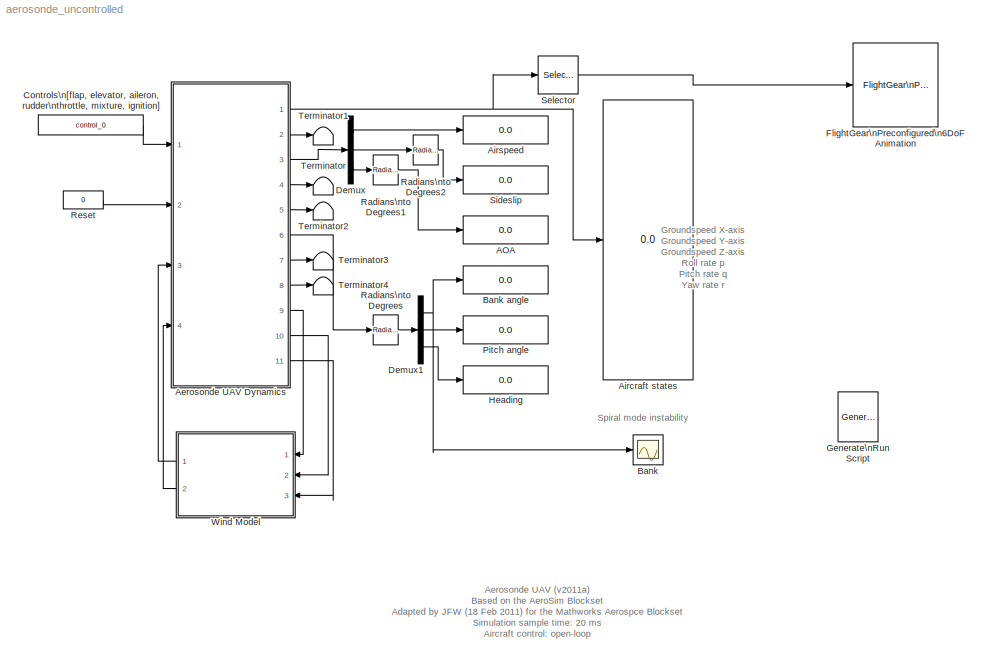
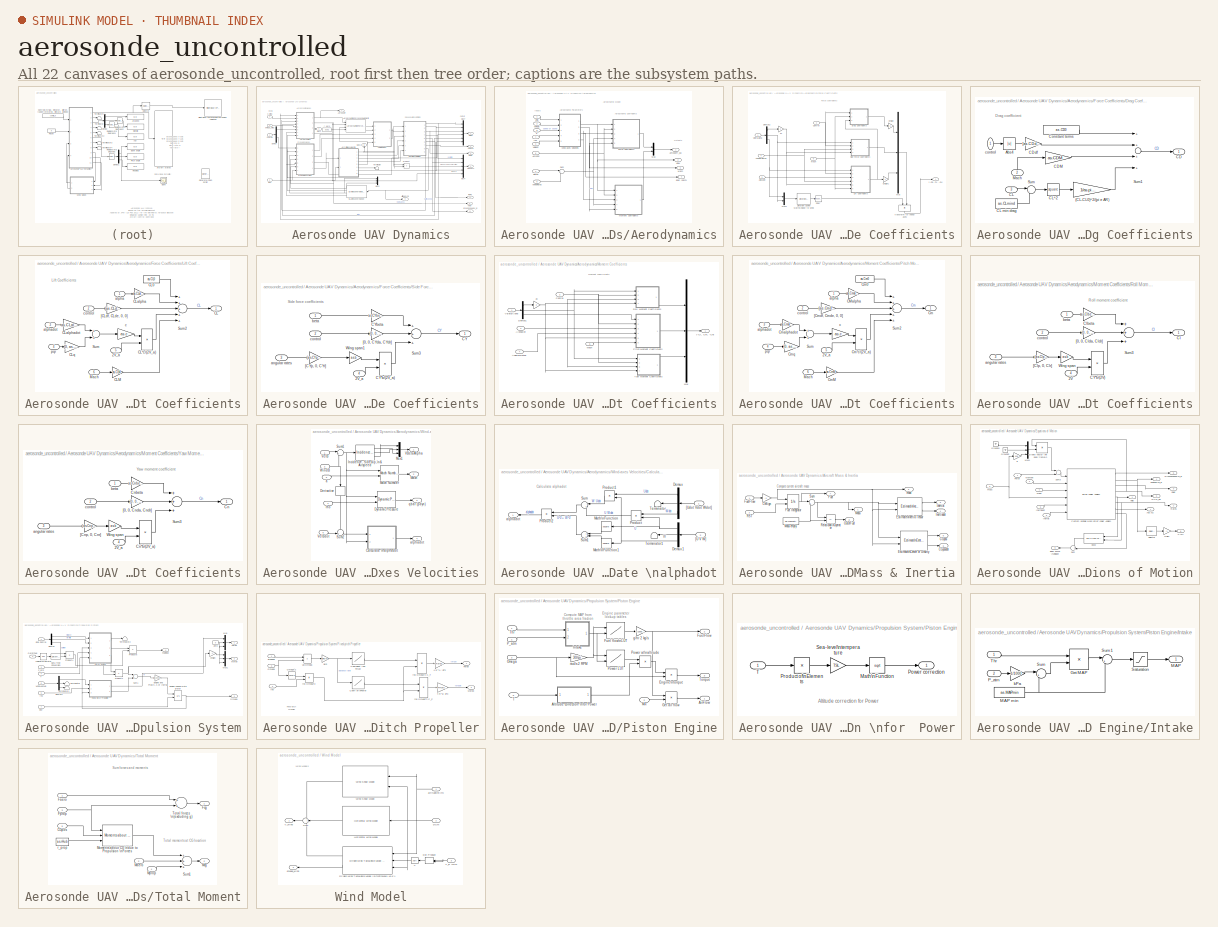
[diagram: thumbnail index - all 22 canvases of the model, root first then tree order]
MODEL aerosonde_uncontrolled
KIND model
BLOCK [Display] AOA
  Decimation = 1
  Lockdown = off
  Ports = [1]
  SID = 1
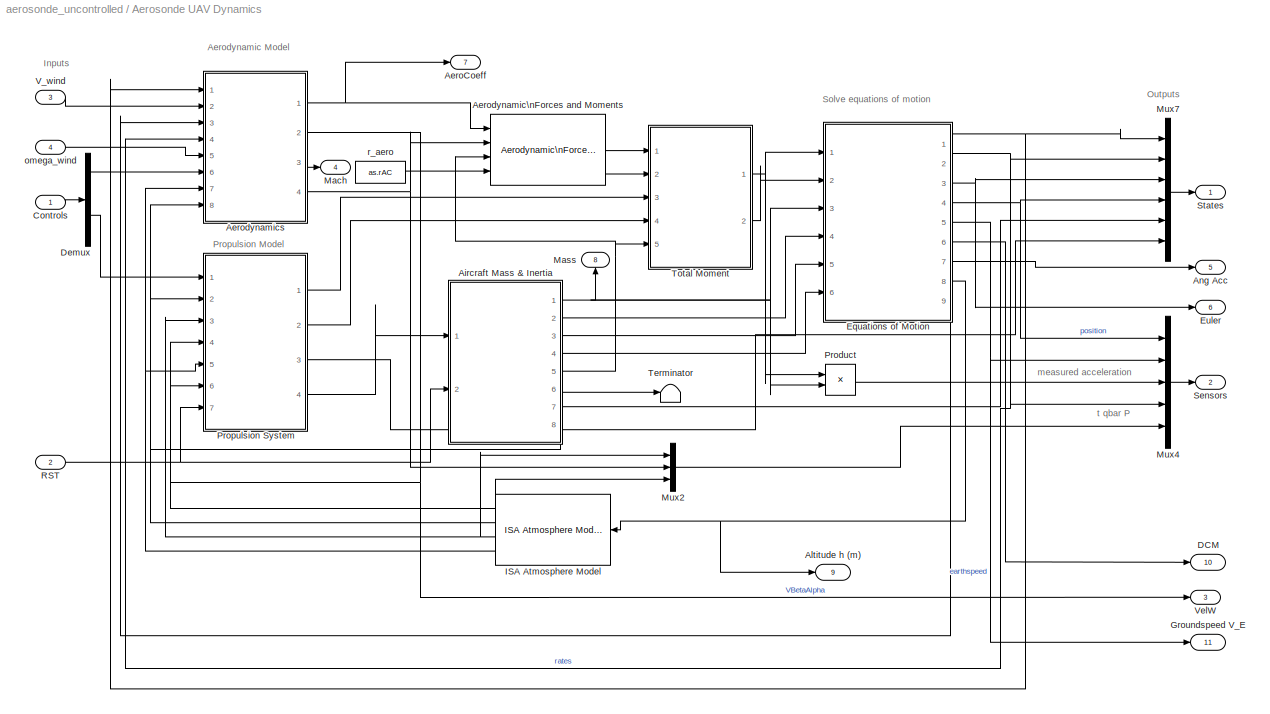
BLOCK [SubSystem] Aerosonde UAV Dynamics
  FunctionWithSeparateData = off
  MaskCallbackString = |||||||
  MaskDescription = Nonlinear 6-DOF Aerosonde  model with equations of motion in \nbody frame.\n\nVersion 2011a (18 February 2011)
  MaskEnableString = on,on,on,on,on,on,on,on
  MaskHelp = The block implements the 6-DOF nonlinear Aerosonde model. It is an adaptation of the model provided in the AeroSim blockset. Velocities are computed in body frame.\n<P><B>Inputs:</B>\n<LI>Controls = the 4x1 vector of aircraft controls [elevator aileron rudder throttle]. Aerodynamic controls are in radians, throttle is from 0 to 1.</LI>\n<LI>RST = the integrator reset flag (0 or 1, all integrators ...<+1723ch>
  MaskHideContents = off
  MaskIconFrame = on
  MaskIconOpaque = on
  MaskIconRotate = none
  MaskIconUnits = autoscale
  MaskPortRotate = default
  MaskPromptString = Aircraft configuration data:|Initial velocity in body axes [u,v,w]: (m/s)|Initial body rotation rates [p,q,r]: (rad/s)|Initial Euler orientation [roll, pitch, yaw]: (rad)|Initial position in inertial axes [Xe,Ye,Ze]: (m)|Initial fuel mass: (Kg)|Initial engine speed: (rad/s)|Ground altitude: (m)
  MaskStyleString = edit,edit,edit,edit,edit,edit,edit,edit
  MaskToolTipString = on,on,on,on,on,on,on,on
  MaskTunableValueString = on,on,on,on,on,on,on,on
  MaskType = 6-DOF Aerosonde Model
  MaskValueString = aerosonde|velocity_0|rates_0|euler_0|position_0|fuel_0|Omega_0|0
  MaskVariables = as=@1;Velocities0=@2;Rates0=@3;Euler0=@4;Position0=@5;Fuel0=@6;Omega0=@7;GndAlt=@8;
  MaskVisibilityString = on,on,on,on,on,on,on,on
  MinAlgLoopOccurrences = off
  Opaque = off
  Ports = [4, 11]
  PropExecContextOutsideSubsystem = off
  RTWSystemCode = Auto
  RequestExecContextInheritance = off
  SID = 352
BLOCK [Outport] Aerosonde UAV Dynamics/AeroCoeff
  IconDisplay = Port number
  Port = 7
  SID = 665
BLOCK [Reference] Aerosonde UAV Dynamics/Aerodynamic\nForces and Moments  REF=aerolibadyn/Aerodynamic\nForces and Moments 
  FunctionWithSeparateData = off
  GeneratePreprocessorConditionals = off
  Ports = [4, 2]
  RTWMemSecDataConstants = Inherit from model
  RTWMemSecDataInternal = Inherit from model
  RTWMemSecDataParameters = Inherit from model
  RTWMemSecFuncExecute = Inherit from model
  RTWMemSecFuncInitTerm = Inherit from model
  S = as.S
  SID = 357
  ShowPortLabels = FromPortIcon
  SourceBlock = aerolibadyn/Aerodynamic\nForces and Moments
  SourceType = Aerodynamic Forces and Moments
  SystemSampleTime = -1
  b = as.b
  cbar = as.c
  inputAxes = Body
  outputForceAxes = Body
  outputMomentAxes = Body
BLOCK [SubSystem] Aerosonde UAV Dynamics/Aerodynamics
  FunctionWithSeparateData = off
  MaskHideContents = off
  MinAlgLoopOccurrences = off
  Opaque = off
  Ports = [8, 4]
  PropExecContextOutsideSubsystem = off
  RTWSystemCode = Auto
  RequestExecContextInheritance = off
  SID = 358
BLOCK [Outport] Aerosonde UAV Dynamics/Aerodynamics/AeroCoeff_ba
  IconDisplay = Port number
  SID = 513
BLOCK [Inport] Aerosonde UAV Dynamics/Aerodynamics/AeroCon
  IconDisplay = Port number
  Port = 6
  PortDimensions = [4 1]
  SID = 364
BLOCK [SubSystem] Aerosonde UAV Dynamics/Aerodynamics/Force Coefficients
  FunctionWithSeparateData = off
  MaskHideContents = off
  MinAlgLoopOccurrences = off
  Opaque = off
  Ports = [5, 1]
  PropExecContextOutsideSubsystem = off
  RTWSystemCode = Auto
  RequestExecContextInheritance = off
  SID = 367
BLOCK [Gain] Aerosonde UAV Dynamics/Aerodynamics/Force Coefficients/2c
  Gain = 2
  SID = 373
BLOCK [Inport] Aerosonde UAV Dynamics/Aerodynamics/Force Coefficients/AlphaDot
  IconDisplay = Port number
  Port = 3
  SID = 370
BLOCK [Inport] Aerosonde UAV Dynamics/Aerodynamics/Force Coefficients/AngularRates
  IconDisplay = Port number
  Port = 4
  PortDimensions = [3 1]
  SID = 371
BLOCK [Gain] Aerosonde UAV Dynamics/Aerodynamics/Force Coefficients/ChSign
  Gain = -1
  SID = 374
BLOCK [Gain] Aerosonde UAV Dynamics/Aerodynamics/Force Coefficients/ChSign1
  Gain = -1
  SID = 375
BLOCK [Inport] Aerosonde UAV Dynamics/Aerodynamics/Force Coefficients/Control
  IconDisplay = Port number
  Port = 2
  PortDimensions = [4 1]
  SID = 369
BLOCK [Math] Aerosonde UAV Dynamics/Aerodynamics/Force Coefficients/DCM'
  Operator = transpose
  Ports = [1, 1]
  SID = 376
BLOCK [Demux] Aerosonde UAV Dynamics/Aerodynamics/Force Coefficients/Demux2
  Outputs = 3
  Ports = [1, 3]
  SID = 377
BLOCK [Reference] Aerosonde UAV Dynamics/Aerodynamics/Force Coefficients/Direction Cosine Matrix\nBody to Wind  REF=aerolibtransform2/Direction Cosine Matrix\nBody to Wind
  FunctionWithSeparateData = off
  GeneratePreprocessorConditionals = off
  Ports = [1, 1]
  RTWMemSecDataConstants = Inherit from model
  RTWMemSecDataInternal = Inherit from model
  RTWMemSecDataParameters = Inherit from model
  RTWMemSecFuncExecute = Inherit from model
  RTWMemSecFuncInitTerm = Inherit from model
  SID = 378
  ShowPortLabels = none
  SourceBlock = aerolibtransform2/Direction Cosine Matrix\nBody to Wind
  SourceType = DCM Body to Wind
  SystemSampleTime = -1
BLOCK [SubSystem] Aerosonde UAV Dynamics/Aerodynamics/Force Coefficients/Drag Coefficients
  FunctionWithSeparateData = off
  MaskHideContents = off
  MinAlgLoopOccurrences = off
  Opaque = off
  Ports = [3, 1]
  PropExecContextOutsideSubsystem = off
  RTWSystemCode = Auto
  RequestExecContextInheritance = off
  SID = 379
BLOCK [Gain] Aerosonde UAV Dynamics/Aerodynamics/Force Coefficients/Drag Coefficients/(CL-CL0)^2//(pi e AR)
  Gain = 1/as.pieaR
  Multiplication = Matrix(K*u)
  SID = 383
BLOCK [Abs] Aerosonde UAV Dynamics/Aerodynamics/Force Coefficients/Drag Coefficients/Abs4
  SID = 384
BLOCK [Outport] Aerosonde UAV Dynamics/Aerodynamics/Force Coefficients/Drag Coefficients/CD
  IconDisplay = Port number
  SID = 392
BLOCK [Gain] Aerosonde UAV Dynamics/Aerodynamics/Force Coefficients/Drag Coefficients/CDM
  Gain = as.CDM
  SID = 385
BLOCK [Gain] Aerosonde UAV Dynamics/Aerodynamics/Force Coefficients/Drag Coefficients/CDdf
  Gain = [as.CDdf, as.CDde, as.CDda, as.CDdr]
  Multiplication = Matrix(K*u)
  SID = 386
BLOCK [Inport] Aerosonde UAV Dynamics/Aerodynamics/Force Coefficients/Drag Coefficients/CL
  IconDisplay = Port number
  Port = 3
  PortDimensions = 1
  SID = 382
BLOCK [Constant] Aerosonde UAV Dynamics/Aerodynamics/Force Coefficients/Drag Coefficients/CL min drag
  SID = 387
  Value = as.CLmind
BLOCK [Math] Aerosonde UAV Dynamics/Aerodynamics/Force Coefficients/Drag Coefficients/CL^2
  Operator = square
  Ports = [1, 1]
  SID = 388
BLOCK [Constant] Aerosonde UAV Dynamics/Aerodynamics/Force Coefficients/Drag Coefficients/Constant terms
  SID = 389
  Value = as.CD0
BLOCK [Inport] Aerosonde UAV Dynamics/Aerodynamics/Force Coefficients/Drag Coefficients/Mach
  IconDisplay = Port number
  Port = 2
  SID = 381
BLOCK [Sum] Aerosonde UAV Dynamics/Aerodynamics/Force Coefficients/Drag Coefficients/Sum
  IconShape = round
  Inputs = |+-
  Ports = [2, 1]
  SID = 390
BLOCK [Sum] Aerosonde UAV Dynamics/Aerodynamics/Force Coefficients/Drag Coefficients/Sum1
  Inputs = ++++
  Ports = [4, 1]
  SID = 391
BLOCK [Inport] Aerosonde UAV Dynamics/Aerodynamics/Force Coefficients/Drag Coefficients/control
  IconDisplay = Port number
  SID = 380
BLOCK [SubSystem] Aerosonde UAV Dynamics/Aerodynamics/Force Coefficients/Lift Coefficients
  FunctionWithSeparateData = off
  MaskHideContents = off
  MinAlgLoopOccurrences = off
  Opaque = off
  Ports = [6, 1]
  PropExecContextOutsideSubsystem = off
  RTWSystemCode = Auto
  RequestExecContextInheritance = off
  SID = 393
BLOCK [Inport] Aerosonde UAV Dynamics/Aerodynamics/Force Coefficients/Lift Coefficients/2V_a
  IconDisplay = Port number
  Port = 5
  SID = 398
BLOCK [Outport] Aerosonde UAV Dynamics/Aerodynamics/Force Coefficients/Lift Coefficients/CL
  IconDisplay = Port number
  SID = 410
BLOCK [Product] Aerosonde UAV Dynamics/Aerodynamics/Force Coefficients/Lift Coefficients/CL*c//(2V_a)
  Inputs = */
  Ports = [2, 1]
  RndMeth = Floor
  SID = 400
BLOCK [Constant] Aerosonde UAV Dynamics/Aerodynamics/Force Coefficients/Lift Coefficients/CL0
  SID = 401
  Value = as.CL0
BLOCK [Gain] Aerosonde UAV Dynamics/Aerodynamics/Force Coefficients/Lift Coefficients/CLM
  Gain = as.CLM
  SID = 402
BLOCK [Gain] Aerosonde UAV Dynamics/Aerodynamics/Force Coefficients/Lift Coefficients/CLalpha
  Gain = as.CLalpha
  SID = 403
BLOCK [Gain] Aerosonde UAV Dynamics/Aerodynamics/Force Coefficients/Lift Coefficients/CLalphadot
  Gain = as.CLalphadot
  Multiplication = Matrix(K*u)
  SID = 404
BLOCK [Gain] Aerosonde UAV Dynamics/Aerodynamics/Force Coefficients/Lift Coefficients/CLq
  Gain = [0, as.CLq, 0]
  Multiplication = Matrix(K*u)
  SID = 405
BLOCK [Inport] Aerosonde UAV Dynamics/Aerodynamics/Force Coefficients/Lift Coefficients/Mach
  IconDisplay = Port number
  Port = 6
  SID = 399
BLOCK [Sum] Aerosonde UAV Dynamics/Aerodynamics/Force Coefficients/Lift Coefficients/Sum
  Ports = [2, 1]
  SID = 406
BLOCK [Sum] Aerosonde UAV Dynamics/Aerodynamics/Force Coefficients/Lift Coefficients/Sum2
  Inputs = +++++
  Ports = [5, 1]
  SID = 407
BLOCK [Gain] Aerosonde UAV Dynamics/Aerodynamics/Force Coefficients/Lift Coefficients/[CLdf, CLde, 0, 0]
  Gain = [as.CLdf, as.CLde, 0, 0]
  Multiplication = Matrix(K*u)
  SID = 408
BLOCK [Inport] Aerosonde UAV Dynamics/Aerodynamics/Force Coefficients/Lift Coefficients/alpha
  IconDisplay = Port number
  SID = 394
BLOCK [Inport] Aerosonde UAV Dynamics/Aerodynamics/Force Coefficients/Lift Coefficients/alphadot
  IconDisplay = Port number
  Port = 3
  SID = 396
BLOCK [Gain] Aerosonde UAV Dynamics/Aerodynamics/Force Coefficients/Lift Coefficients/c
  Gain = as.c
  SID = 409
BLOCK [Inport] Aerosonde UAV Dynamics/Aerodynamics/Force Coefficients/Lift Coefficients/control
  IconDisplay = Port number
  Port = 2
  SID = 395
BLOCK [Inport] Aerosonde UAV Dynamics/Aerodynamics/Force Coefficients/Lift Coefficients/pqr
  IconDisplay = Port number
  Port = 4
  SID = 397
BLOCK [Inport] Aerosonde UAV Dynamics/Aerodynamics/Force Coefficients/Mach
  IconDisplay = Port number
  Port = 5
  PortDimensions = 1
  SID = 372
BLOCK [Mux] Aerosonde UAV Dynamics/Aerodynamics/Force Coefficients/Mux
  DisplayOption = bar
  Inputs = 3
  Ports = [3, 1]
  SID = 411
BLOCK [Mux] Aerosonde UAV Dynamics/Aerodynamics/Force Coefficients/Mux1
  DisplayOption = bar
  Inputs = 2
  Ports = [2, 1]
  SID = 412
BLOCK [SubSystem] Aerosonde UAV Dynamics/Aerodynamics/Force Coefficients/Side Force Coefficients
  FunctionWithSeparateData = off
  MaskHideContents = off
  MinAlgLoopOccurrences = off
  Opaque = off
  Ports = [4, 1]
  PropExecContextOutsideSubsystem = off
  RTWSystemCode = Auto
  RequestExecContextInheritance = off
  SID = 413
BLOCK [Inport] Aerosonde UAV Dynamics/Aerodynamics/Force Coefficients/Side Force Coefficients/2V_a
  IconDisplay = Port number
  Port = 4
  SID = 417
BLOCK [Outport] Aerosonde UAV Dynamics/Aerodynamics/Force Coefficients/Side Force Coefficients/CY
  IconDisplay = Port number
  SID = 424
BLOCK [Product] Aerosonde UAV Dynamics/Aerodynamics/Force Coefficients/Side Force Coefficients/CY*b//(2V_a)
  Inputs = */
  Ports = [2, 1]
  RndMeth = Floor
  SID = 418
BLOCK [Gain] Aerosonde UAV Dynamics/Aerodynamics/Force Coefficients/Side Force Coefficients/CYbeta
  Gain = as.CYbeta
  SID = 419
BLOCK [Sum] Aerosonde UAV Dynamics/Aerodynamics/Force Coefficients/Side Force Coefficients/Sum3
  Inputs = +++
  Ports = [3, 1]
  SID = 420
BLOCK [Gain] Aerosonde UAV Dynamics/Aerodynamics/Force Coefficients/Side Force Coefficients/Wing span1
  Gain = as.b
  SID = 421
BLOCK [Gain] Aerosonde UAV Dynamics/Aerodynamics/Force Coefficients/Side Force Coefficients/[0, 0, CYda, CYdr]
  Gain = [0, 0, as.CYda, as.CYdr]
  Multiplication = Matrix(K*u)
  SID = 422
BLOCK [Gain] Aerosonde UAV Dynamics/Aerodynamics/Force Coefficients/Side Force Coefficients/[CYp, 0, CYr]
  Gain = [as.CYp, 0, as.CYr]
  Multiplication = Matrix(K*u)
  SID = 423
BLOCK [Inport] Aerosonde UAV Dynamics/Aerodynamics/Force Coefficients/Side Force Coefficients/angular rates
  IconDisplay = Port number
  Port = 3
  SID = 416
BLOCK [Inport] Aerosonde UAV Dynamics/Aerodynamics/Force Coefficients/Side Force Coefficients/beta
  IconDisplay = Port number
  SID = 414
BLOCK [Inport] Aerosonde UAV Dynamics/Aerodynamics/Force Coefficients/Side Force Coefficients/control
  IconDisplay = Port number
  Port = 2
  SID = 415
BLOCK [Inport] Aerosonde UAV Dynamics/Aerodynamics/Force Coefficients/VBetaAlpha
  IconDisplay = Port number
  PortDimensions = [3 1]
  SID = 368
BLOCK [Outport] Aerosonde UAV Dynamics/Aerodynamics/Force Coefficients/[-CD, CY, -CL]
  IconDisplay = Port number
  SID = 426
BLOCK [Product] Aerosonde UAV Dynamics/Aerodynamics/Force Coefficients/transform to \nbody axes
  Inputs = **
  Multiplication = Matrix(*)
  Ports = [2, 1]
  RndMeth = Floor
  SID = 425
BLOCK [Outport] Aerosonde UAV Dynamics/Aerodynamics/Mach
  IconDisplay = Port number
  Port = 3
  SID = 515
BLOCK [SubSystem] Aerosonde UAV Dynamics/Aerodynamics/Moment Coefficients
  FunctionWithSeparateData = off
  MaskHideContents = off
  MinAlgLoopOccurrences = off
  Opaque = off
  Ports = [5, 1]
  PropExecContextOutsideSubsystem = off
  RTWSystemCode = Auto
  RequestExecContextInheritance = off
  SID = 427
BLOCK [Gain] Aerosonde UAV Dynamics/Aerodynamics/Moment Coefficients/2c
  Gain = 2
  SID = 433
BLOCK [Inport] Aerosonde UAV Dynamics/Aerodynamics/Moment Coefficients/AlphaDot
  IconDisplay = Port number
  Port = 3
  SID = 430
BLOCK [Inport] Aerosonde UAV Dynamics/Aerodynamics/Moment Coefficients/AngularRates
  IconDisplay = Port number
  Port = 4
  PortDimensions = [3 1]
  SID = 431
BLOCK [Inport] Aerosonde UAV Dynamics/Aerodynamics/Moment Coefficients/Control
  IconDisplay = Port number
  Port = 2
  PortDimensions = [4 1]
  SID = 429
BLOCK [Demux] Aerosonde UAV Dynamics/Aerodynamics/Moment Coefficients/Demux1
  Outputs = 3
  Ports = [1, 3]
  SID = 434
BLOCK [Inport] Aerosonde UAV Dynamics/Aerodynamics/Moment Coefficients/Mach
  IconDisplay = Port number
  Port = 5
  PortDimensions = 1
  SID = 432
BLOCK [Mux] Aerosonde UAV Dynamics/Aerodynamics/Moment Coefficients/Mux
  DisplayOption = bar
  Inputs = 3
  Ports = [3, 1]
  SID = 435
BLOCK [SubSystem] Aerosonde UAV Dynamics/Aerodynamics/Moment Coefficients/Pitch Moment Coefficients
  FunctionWithSeparateData = off
  MaskHideContents = off
  MinAlgLoopOccurrences = off
  Opaque = off
  Ports = [6, 1]
  PropExecContextOutsideSubsystem = off
  RTWSystemCode = Auto
  RequestExecContextInheritance = off
  SID = 436
BLOCK [Inport] Aerosonde UAV Dynamics/Aerodynamics/Moment Coefficients/Pitch Moment Coefficients/2V_a
  IconDisplay = Port number
  Port = 5
  SID = 441
BLOCK [Gain] Aerosonde UAV Dynamics/Aerodynamics/Moment Coefficients/Pitch Moment Coefficients/CMalpha
  Gain = as.Cmalpha
  SID = 443
BLOCK [Outport] Aerosonde UAV Dynamics/Aerodynamics/Moment Coefficients/Pitch Moment Coefficients/Cm
  IconDisplay = Port number
  SID = 453
BLOCK [Product] Aerosonde UAV Dynamics/Aerodynamics/Moment Coefficients/Pitch Moment Coefficients/Cm*c//(2V_a)
  Inputs = */
  Ports = [2, 1]
  RndMeth = Floor
  SID = 444
BLOCK [Constant] Aerosonde UAV Dynamics/Aerodynamics/Moment Coefficients/Pitch Moment Coefficients/Cm0
  SID = 445
  Value = as.Cm0
BLOCK [Gain] Aerosonde UAV Dynamics/Aerodynamics/Moment Coefficients/Pitch Moment Coefficients/CmM
  Gain = as.CmM
  SID = 446
BLOCK [Gain] Aerosonde UAV Dynamics/Aerodynamics/Moment Coefficients/Pitch Moment Coefficients/Cmalphadot
  Gain = as.Cmalphadot
  Multiplication = Matrix(K*u)
  SID = 447
BLOCK [Gain] Aerosonde UAV Dynamics/Aerodynamics/Moment Coefficients/Pitch Moment Coefficients/Cmq
  Gain = [0, as.Cmq, 0]
  Multiplication = Matrix(K*u)
  SID = 448
BLOCK [Inport] Aerosonde UAV Dynamics/Aerodynamics/Moment Coefficients/Pitch Moment Coefficients/Mach
  IconDisplay = Port number
  Port = 6
  SID = 442
BLOCK [Sum] Aerosonde UAV Dynamics/Aerodynamics/Moment Coefficients/Pitch Moment Coefficients/Sum
  Ports = [2, 1]
  SID = 449
BLOCK [Sum] Aerosonde UAV Dynamics/Aerodynamics/Moment Coefficients/Pitch Moment Coefficients/Sum2
  Inputs = +++++
  Ports = [5, 1]
  SID = 450
BLOCK [Gain] Aerosonde UAV Dynamics/Aerodynamics/Moment Coefficients/Pitch Moment Coefficients/[Cmdf, Cmde, 0, 0]
  Gain = [as.Cmdf, as.Cmde, 0, 0]
  Multiplication = Matrix(K*u)
  SID = 451
BLOCK [Inport] Aerosonde UAV Dynamics/Aerodynamics/Moment Coefficients/Pitch Moment Coefficients/alpha
  IconDisplay = Port number
  SID = 437
BLOCK [Inport] Aerosonde UAV Dynamics/Aerodynamics/Moment Coefficients/Pitch Moment Coefficients/alphadot
  IconDisplay = Port number
  Port = 3
  SID = 439
BLOCK [Gain] Aerosonde UAV Dynamics/Aerodynamics/Moment Coefficients/Pitch Moment Coefficients/c
  Gain = as.c
  SID = 452
BLOCK [Inport] Aerosonde UAV Dynamics/Aerodynamics/Moment Coefficients/Pitch Moment Coefficients/control
  IconDisplay = Port number
  Port = 2
  SID = 438
BLOCK [Inport] Aerosonde UAV Dynamics/Aerodynamics/Moment Coefficients/Pitch Moment Coefficients/pqr
  IconDisplay = Port number
  Port = 4
  SID = 440
BLOCK [SubSystem] Aerosonde UAV Dynamics/Aerodynamics/Moment Coefficients/Roll Moment Coefficients
  FunctionWithSeparateData = off
  MaskHideContents = off
  MinAlgLoopOccurrences = off
  Opaque = off
  Ports = [4, 1]
  PropExecContextOutsideSubsystem = off
  RTWSystemCode = Auto
  RequestExecContextInheritance = off
  SID = 454
BLOCK [Inport] Aerosonde UAV Dynamics/Aerodynamics/Moment Coefficients/Roll Moment Coefficients/2V
  IconDisplay = Port number
  Port = 4
  SID = 458
BLOCK [Product] Aerosonde UAV Dynamics/Aerodynamics/Moment Coefficients/Roll Moment Coefficients/CY*b//(2V)
  Inputs = */
  Ports = [2, 1]
  RndMeth = Floor
  SID = 459
BLOCK [Outport] Aerosonde UAV Dynamics/Aerodynamics/Moment Coefficients/Roll Moment Coefficients/Cl
  IconDisplay = Port number
  SID = 465
BLOCK [Gain] Aerosonde UAV Dynamics/Aerodynamics/Moment Coefficients/Roll Moment Coefficients/Clbeta
  Gain = as.Clbeta
  SID = 460
BLOCK [Sum] Aerosonde UAV Dynamics/Aerodynamics/Moment Coefficients/Roll Moment Coefficients/Sum3
  Inputs = +++
  Ports = [3, 1]
  SID = 461
BLOCK [Gain] Aerosonde UAV Dynamics/Aerodynamics/Moment Coefficients/Roll Moment Coefficients/Wing span
  Gain = as.b
  SID = 462
BLOCK [Gain] Aerosonde UAV Dynamics/Aerodynamics/Moment Coefficients/Roll Moment Coefficients/[0, 0, Clda, Cldr]
  Gain = [0, 0, as.Clda, as.Cldr]
  Multiplication = Matrix(K*u)
  SID = 463
BLOCK [Gain] Aerosonde UAV Dynamics/Aerodynamics/Moment Coefficients/Roll Moment Coefficients/[Clp, 0, Clr]
  Gain = [as.Clp, 0, as.Clr]
  Multiplication = Matrix(K*u)
  SID = 464
BLOCK [Inport] Aerosonde UAV Dynamics/Aerodynamics/Moment Coefficients/Roll Moment Coefficients/angular rates
  IconDisplay = Port number
  Port = 3
  SID = 457
BLOCK [Inport] Aerosonde UAV Dynamics/Aerodynamics/Moment Coefficients/Roll Moment Coefficients/beta
  IconDisplay = Port number
  SID = 455
BLOCK [Inport] Aerosonde UAV Dynamics/Aerodynamics/Moment Coefficients/Roll Moment Coefficients/control
  IconDisplay = Port number
  Port = 2
  SID = 456
BLOCK [Inport] Aerosonde UAV Dynamics/Aerodynamics/Moment Coefficients/VBetaAlpha
  IconDisplay = Port number
  PortDimensions = [3 1]
  SID = 428
BLOCK [SubSystem] Aerosonde UAV Dynamics/Aerodynamics/Moment Coefficients/Yaw Moment Coefficients
  FunctionWithSeparateData = off
  MaskHideContents = off
  MinAlgLoopOccurrences = off
  Opaque = off
  Ports = [4, 1]
  PropExecContextOutsideSubsystem = off
  RTWSystemCode = Auto
  RequestExecContextInheritance = off
  SID = 466
BLOCK [Inport] Aerosonde UAV Dynamics/Aerodynamics/Moment Coefficients/Yaw Moment Coefficients/2V_a
  IconDisplay = Port number
  Port = 4
  SID = 470
BLOCK [Outport] Aerosonde UAV Dynamics/Aerodynamics/Moment Coefficients/Yaw Moment Coefficients/Cn
  IconDisplay = Port number
  SID = 477
BLOCK [Product] Aerosonde UAV Dynamics/Aerodynamics/Moment Coefficients/Yaw Moment Coefficients/Cn*b//(2V_a)
  Inputs = */
  Ports = [2, 1]
  RndMeth = Floor
  SID = 471
BLOCK [Gain] Aerosonde UAV Dynamics/Aerodynamics/Moment Coefficients/Yaw Moment Coefficients/Cnbeta
  Gain = as.Cnbeta
  SID = 472
BLOCK [Sum] Aerosonde UAV Dynamics/Aerodynamics/Moment Coefficients/Yaw Moment Coefficients/Sum3
  Inputs = +++
  Ports = [3, 1]
  SID = 473
BLOCK [Gain] Aerosonde UAV Dynamics/Aerodynamics/Moment Coefficients/Yaw Moment Coefficients/Wing span
  Gain = as.b
  SID = 474
BLOCK [Gain] Aerosonde UAV Dynamics/Aerodynamics/Moment Coefficients/Yaw Moment Coefficients/[0, 0, Cnda, Cndr]
  Gain = [0, 0, as.Cnda, as.Cndr]
  Multiplication = Matrix(K*u)
  SID = 475
BLOCK [Gain] Aerosonde UAV Dynamics/Aerodynamics/Moment Coefficients/Yaw Moment Coefficients/[Cnp, 0, Cnr]
  Gain = [as.Cnp, 0, as.Cnr]
  Multiplication = Matrix(K*u)
  SID = 476
BLOCK [Inport] Aerosonde UAV Dynamics/Aerodynamics/Moment Coefficients/Yaw Moment Coefficients/angular rates
  IconDisplay = Port number
  Port = 3
  SID = 469
BLOCK [Inport] Aerosonde UAV Dynamics/Aerodynamics/Moment Coefficients/Yaw Moment Coefficients/beta
  IconDisplay = Port number
  SID = 467
BLOCK [Inport] Aerosonde UAV Dynamics/Aerodynamics/Moment Coefficients/Yaw Moment Coefficients/control
  IconDisplay = Port number
  Port = 2
  SID = 468
BLOCK [Outport] Aerosonde UAV Dynamics/Aerodynamics/Moment Coefficients/[-Cl, Cm, -Cn]
  IconDisplay = Port number
  SID = 478
BLOCK [Mux] Aerosonde UAV Dynamics/Aerodynamics/Mux
  DisplayOption = bar
  Inputs = 2
  Ports = [2, 1]
  SID = 479
BLOCK [Inport] Aerosonde UAV Dynamics/Aerodynamics/Rates
  IconDisplay = Port number
  Port = 4
  PortDimensions = [3 1]
  SID = 362
BLOCK [Sum] Aerosonde UAV Dynamics/Aerodynamics/Sum
  IconShape = round
  Inputs = |+-
  Ports = [2, 1]
  SID = 480
BLOCK [Inport] Aerosonde UAV Dynamics/Aerodynamics/VelB
  IconDisplay = Port number
  PortDimensions = [3 1]
  SID = 359
BLOCK [Inport] Aerosonde UAV Dynamics/Aerodynamics/VelBdot
  IconDisplay = Port number
  Port = 3
  SID = 361
BLOCK [Outport] Aerosonde UAV Dynamics/Aerodynamics/VelW
  IconDisplay = Port number
  Port = 2
  SID = 514
BLOCK [SubSystem] Aerosonde UAV Dynamics/Aerodynamics/Wind-axes Velocities
  FunctionWithSeparateData = off
  MaskHideContents = off
  MinAlgLoopOccurrences = off
  Opaque = off
  Ports = [5, 4]
  PropExecContextOutsideSubsystem = off
  RTWSystemCode = Auto
  RequestExecContextInheritance = off
  SID = 481
BLOCK [SubSystem] Aerosonde UAV Dynamics/Aerodynamics/Wind-axes Velocities/Calculate \nalphadot
  FunctionWithSeparateData = off
  MaskHideContents = off
  MinAlgLoopOccurrences = off
  Opaque = off
  Ports = [2, 1]
  PropExecContextOutsideSubsystem = off
  RTWSystemCode = Auto
  RequestExecContextInheritance = off
  SID = 487
BLOCK [Demux] Aerosonde UAV Dynamics/Aerodynamics/Wind-axes Velocities/Calculate \nalphadot/Demux
  DisplayOption = bar
  Outputs = 3
  Ports = [1, 3]
  SID = 490
BLOCK [Demux] Aerosonde UAV Dynamics/Aerodynamics/Wind-axes Velocities/Calculate \nalphadot/Demux1
  DisplayOption = bar
  Outputs = 3
  Ports = [1, 3]
  SID = 491
BLOCK [Math] Aerosonde UAV Dynamics/Aerodynamics/Wind-axes Velocities/Calculate \nalphadot/Math\nFunction
  Operator = square
  Ports = [1, 1]
  SID = 492
BLOCK [Math] Aerosonde UAV Dynamics/Aerodynamics/Wind-axes Velocities/Calculate \nalphadot/Math\nFunction1
  Operator = square
  Ports = [1, 1]
  SID = 493
BLOCK [Product] Aerosonde UAV Dynamics/Aerodynamics/Wind-axes Velocities/Calculate \nalphadot/Product
  InputSameDT = off
  OutDataTypeStr = Inherit: Inherit via internal rule
  Ports = [2, 1]
  SID = 494
  SaturateOnIntegerOverflow = off
BLOCK [Product] Aerosonde UAV Dynamics/Aerodynamics/Wind-axes Velocities/Calculate \nalphadot/Product1
  InputSameDT = off
  OutDataTypeStr = Inherit: Inherit via internal rule
  Ports = [2, 1]
  SID = 495
  SaturateOnIntegerOverflow = off
BLOCK [Product] Aerosonde UAV Dynamics/Aerodynamics/Wind-axes Velocities/Calculate \nalphadot/Product2
  InputSameDT = off
  Inputs = */
  OutDataTypeStr = Inherit: Inherit via internal rule
  Ports = [2, 1]
  SID = 496
  SaturateOnIntegerOverflow = off
BLOCK [Sum] Aerosonde UAV Dynamics/Aerodynamics/Wind-axes Velocities/Calculate \nalphadot/Sum
  IconShape = round
  InputSameDT = off
  Inputs = -|+
  OutDataTypeStr = Inherit: Inherit via internal rule
  Ports = [2, 1]
  SID = 497
  SaturateOnIntegerOverflow = off
BLOCK [Sum] Aerosonde UAV Dynamics/Aerodynamics/Wind-axes Velocities/Calculate \nalphadot/Sum1
  IconShape = round
  InputSameDT = off
  Inputs = +|+
  OutDataTypeStr = Inherit: Inherit via internal rule
  Ports = [2, 1]
  SID = 498
  SaturateOnIntegerOverflow = off
BLOCK [Terminator] Aerosonde UAV Dynamics/Aerodynamics/Wind-axes Velocities/Calculate \nalphadot/Terminator
  SID = 499
BLOCK [Terminator] Aerosonde UAV Dynamics/Aerodynamics/Wind-axes Velocities/Calculate \nalphadot/Terminator1
  SID = 500
BLOCK [Inport] Aerosonde UAV Dynamics/Aerodynamics/Wind-axes Velocities/Calculate \nalphadot/[U V W]
  IconDisplay = Port number
  Port = 2
  SID = 489
BLOCK [Inport] Aerosonde UAV Dynamics/Aerodynamics/Wind-axes Velocities/Calculate \nalphadot/[Udot Vdot Wdot]
  IconDisplay = Port number
  SID = 488
BLOCK [Outport] Aerosonde UAV Dynamics/Aerodynamics/Wind-axes Velocities/Calculate \nalphadot/alphadot
  IconDisplay = Port number
  SID = 501
BLOCK [Derivative] Aerosonde UAV Dynamics/Aerodynamics/Wind-axes Velocities/Derivative
  SID = 502
BLOCK [Reference] Aerosonde UAV Dynamics/Aerodynamics/Wind-axes Velocities/Dynamic Pressure  REF=aerolibasang/Dynamic Pressure
  FunctionWithSeparateData = off
  GeneratePreprocessorConditionals = off
  Ports = [2, 1]
  RTWMemSecDataConstants = Inherit from model
  RTWMemSecDataInternal = Inherit from model
  RTWMemSecDataParameters = Inherit from model
  RTWMemSecFuncExecute = Inherit from model
  RTWMemSecFuncInitTerm = Inherit from model
  SID = 503
  ShowPortLabels = FromPortIcon
  SourceBlock = aerolibasang/Dynamic Pressure
  SourceType = Dynamic Pressure
  SystemSampleTime = -1
BLOCK [Reference] Aerosonde UAV Dynamics/Aerodynamics/Wind-axes Velocities/Incidence, Sideslip,\n& Airspeed  REF=aerolibasang/Incidence, Sideslip,\n& Airspeed
  FunctionWithSeparateData = off
  GeneratePreprocessorConditionals = off
  Ports = [1, 3]
  RTWMemSecDataConstants = Inherit from model
  RTWMemSecDataInternal = Inherit from model
  RTWMemSecDataParameters = Inherit from model
  RTWMemSecFuncExecute = Inherit from model
  RTWMemSecFuncInitTerm = Inherit from model
  SID = 504
  ShowPortLabels = FromPortIcon
  SourceBlock = aerolibasang/Incidence, Sideslip,\n& Airspeed
  SourceType = Incidence,Sideslip,&Airspeed
  SystemSampleTime = -1
BLOCK [Outport] Aerosonde UAV Dynamics/Aerodynamics/Wind-axes Velocities/Mach
  IconDisplay = Port number
  Port = 2
  SID = 510
BLOCK [Reference] Aerosonde UAV Dynamics/Aerodynamics/Wind-axes Velocities/Mach Number  REF=aerolibasang/Mach Number
  FunctionWithSeparateData = off
  GeneratePreprocessorConditionals = off
  Ports = [2, 1]
  RTWMemSecDataConstants = Inherit from model
  RTWMemSecDataInternal = Inherit from model
  RTWMemSecDataParameters = Inherit from model
  RTWMemSecFuncExecute = Inherit from model
  RTWMemSecFuncInitTerm = Inherit from model
  SID = 505
  ShowPortLabels = FromPortIcon
  SourceBlock = aerolibasang/Mach Number
  SourceType = Mach Number
  SystemSampleTime = -1
BLOCK [Mux] Aerosonde UAV Dynamics/Aerodynamics/Wind-axes Velocities/Mux1
  DisplayOption = bar
  Inputs = 3
  Ports = [3, 1]
  SID = 506
BLOCK [Sum] Aerosonde UAV Dynamics/Aerodynamics/Wind-axes Velocities/Sum1
  IconShape = round
  Inputs = |+-
  Ports = [2, 1]
  SID = 507
BLOCK [Sum] Aerosonde UAV Dynamics/Aerodynamics/Wind-axes Velocities/Sum2
  IconShape = round
  Inputs = -+|
  Ports = [2, 1]
  SID = 508
BLOCK [Outport] Aerosonde UAV Dynamics/Aerodynamics/Wind-axes Velocities/VBetaAlpha
  IconDisplay = Port number
  SID = 509
BLOCK [Inport] Aerosonde UAV Dynamics/Aerodynamics/Wind-axes Velocities/VelB
  IconDisplay = Port number
  SID = 482
BLOCK [Inport] Aerosonde UAV Dynamics/Aerodynamics/Wind-axes Velocities/VelBdot
  IconDisplay = Port number
  Port = 5
  SID = 486
BLOCK [Inport] Aerosonde UAV Dynamics/Aerodynamics/Wind-axes Velocities/WindB
  IconDisplay = Port number
  Port = 2
  SID = 483
BLOCK [Inport] Aerosonde UAV Dynamics/Aerodynamics/Wind-axes Velocities/a
  IconDisplay = Port number
  Port = 3
  SID = 484
BLOCK [Outport] Aerosonde UAV Dynamics/Aerodynamics/Wind-axes Velocities/alphadot
  IconDisplay = Port number
  Port = 4
  SID = 512
BLOCK [Outport] Aerosonde UAV Dynamics/Aerodynamics/Wind-axes Velocities/qbar (pdyn)
  IconDisplay = Port number
  Port = 3
  SID = 511
BLOCK [Inport] Aerosonde UAV Dynamics/Aerodynamics/Wind-axes Velocities/rho
  IconDisplay = Port number
  Port = 4
  SID = 485
BLOCK [Inport] Aerosonde UAV Dynamics/Aerodynamics/WindB
  IconDisplay = Port number
  Port = 2
  PortDimensions = [3 1]
  SID = 360
BLOCK [Inport] Aerosonde UAV Dynamics/Aerodynamics/WindRates
  IconDisplay = Port number
  Port = 5
  PortDimensions = [3 1]
  SID = 363
BLOCK [Inport] Aerosonde UAV Dynamics/Aerodynamics/a 
  IconDisplay = Port number
  Port = 8
  PortDimensions = 1
  SID = 366
BLOCK [Outport] Aerosonde UAV Dynamics/Aerodynamics/qbar (pdyn)
  IconDisplay = Port number
  Port = 4
  SID = 516
BLOCK [Inport] Aerosonde UAV Dynamics/Aerodynamics/rho
  IconDisplay = Port number
  Port = 7
  PortDimensions = 1
  SID = 365
BLOCK [SubSystem] Aerosonde UAV Dynamics/Aircraft Mass & Inertia
  FunctionWithSeparateData = off
  MaskHideContents = off
  MinAlgLoopOccurrences = off
  Opaque = off
  Ports = [2, 8]
  PropExecContextOutsideSubsystem = off
  RTWSystemCode = Auto
  RequestExecContextInheritance = off
  SID = 517
BLOCK [Outport] Aerosonde UAV Dynamics/Aircraft Mass & Inertia/CGpos
  IconDisplay = Port number
  Port = 5
  SID = 531
BLOCK [Outport] Aerosonde UAV Dynamics/Aircraft Mass & Inertia/CGposdot
  IconDisplay = Port number
  Port = 6
  SID = 532
BLOCK [Gain] Aerosonde UAV Dynamics/Aircraft Mass & Inertia/ChSign
  Gain = -1
  SID = 520
BLOCK [Reference] Aerosonde UAV Dynamics/Aircraft Mass & Inertia/Estimate\nCenter of Gravity  REF=aerolibbdyn/Estimate\nCenter of Gravity
  FunctionWithSeparateData = off
  GeneratePreprocessorConditionals = off
  Ports = [2, 2]
  RTWMemSecDataConstants = Inherit from model
  RTWMemSecDataInternal = Inherit from model
  RTWMemSecDataParameters = Inherit from model
  RTWMemSecFuncExecute = Inherit from model
  RTWMemSecFuncInitTerm = Inherit from model
  SID = 521
  ShowPortLabels = FromPortIcon
  SourceBlock = aerolibbdyn/Estimate\nCenter of Gravity
  SourceType = Estimate Center of Gravity
  SystemSampleTime = -1
  ecg = as.CGempty
  emass = as.mempty
  fcg = as.CGgross
  fmass = as.mgross
BLOCK [Reference] Aerosonde UAV Dynamics/Aircraft Mass & Inertia/Estimate\nInertia Tensor  REF=aerolibbdyn/Estimate\nInertia Tensor
  FunctionWithSeparateData = off
  GeneratePreprocessorConditionals = off
  Ports = [2, 2]
  RTWMemSecDataConstants = Inherit from model
  RTWMemSecDataInternal = Inherit from model
  RTWMemSecDataParameters = Inherit from model
  RTWMemSecFuncExecute = Inherit from model
  RTWMemSecFuncInitTerm = Inherit from model
  SID = 522
  ShowPortLabels = FromPortIcon
  SourceBlock = aerolibbdyn/Estimate\nInertia Tensor
  SourceType = Estimate Inertia Tensor
  SystemSampleTime = -1
  eI = as.J_empty
  emass = as.mempty
  fI = as.J_gross
  fmass = as.mgross
BLOCK [Outport] Aerosonde UAV Dynamics/Aircraft Mass & Inertia/Fuel
  IconDisplay = Port number
  Port = 7
  SID = 533
BLOCK [Integrator] Aerosonde UAV Dynamics/Aircraft Mass & Inertia/Fuel Integrator
  ExternalReset = rising
  InitialCondition = Fuel0
  LimitOutput = on
  LowerSaturationLimit = 0
  Ports = [2, 1]
  SID = 523
  UpperSaturationLimit = as.mgross-as.mempty
BLOCK [Inport] Aerosonde UAV Dynamics/Aircraft Mass & Inertia/FuelFlow
  IconDisplay = Port number
  PortDimensions = 1
  SID = 518
BLOCK [Outport] Aerosonde UAV Dynamics/Aircraft Mass & Inertia/Inertia
  IconDisplay = Port number
  Port = 3
  SID = 529
BLOCK [Outport] Aerosonde UAV Dynamics/Aircraft Mass & Inertia/Inertiadot
  IconDisplay = Port number
  Port = 4
  SID = 530
BLOCK [Outport] Aerosonde UAV Dynamics/Aircraft Mass & Inertia/Mass
  IconDisplay = Port number
  SID = 527
BLOCK [Constant] Aerosonde UAV Dynamics/Aircraft Mass & Inertia/Mass empty
  SID = 524
  Value = as.mempty
BLOCK [Outport] Aerosonde UAV Dynamics/Aircraft Mass & Inertia/OutofFuel
  IconDisplay = Port number
  Port = 8
  SID = 534
BLOCK [Inport] Aerosonde UAV Dynamics/Aircraft Mass & Inertia/RST
  IconDisplay = Port number
  Port = 2
  PortDimensions = 1
  SID = 519
BLOCK [RelationalOperator] Aerosonde UAV Dynamics/Aircraft Mass & Inertia/Relational\nOperator
  Operator = ==
  Ports = [2, 1]
  SID = 525
BLOCK [Sum] Aerosonde UAV Dynamics/Aircraft Mass & Inertia/Sum
  IconShape = round
  Inputs = |++
  Ports = [2, 1]
  SID = 526
BLOCK [Outport] Aerosonde UAV Dynamics/Aircraft Mass & Inertia/mdot
  IconDisplay = Port number
  Port = 2
  SID = 528
BLOCK [Outport] Aerosonde UAV Dynamics/Altitude h (m) 
  IconDisplay = Port number
  Port = 9
  SID = 667
BLOCK [Outport] Aerosonde UAV Dynamics/Ang Acc
  IconDisplay = Port number
  Port = 5
  SID = 663
BLOCK [Inport] Aerosonde UAV Dynamics/Controls
  IconDisplay = Port number
  SID = 353
BLOCK [Outport] Aerosonde UAV Dynamics/DCM
  IconDisplay = Port number
  Port = 10
  SID = 668
BLOCK [Demux] Aerosonde UAV Dynamics/Demux
  Outputs = [4,3]
  Ports = [1, 2]
  SID = 535
BLOCK [SubSystem] Aerosonde UAV Dynamics/Equations of Motion
  FunctionWithSeparateData = off
  MaskHideContents = off
  MinAlgLoopOccurrences = off
  Opaque = off
  Ports = [6, 9]
  PropExecContextOutsideSubsystem = off
  RTWSystemCode = Auto
  RequestExecContextInheritance = off
  SID = 536
BLOCK [Outport] Aerosonde UAV Dynamics/Equations of Motion/Ang Acc
  IconDisplay = Port number
  Port = 7
  SID = 560
BLOCK [Outport] Aerosonde UAV Dynamics/Equations of Motion/Body accns \nVelBdot
  IconDisplay = Port number
  Port = 9
  SID = 562
BLOCK [Reference] Aerosonde UAV Dynamics/Equations of Motion/Custom Variable Mass 6DoF (Euler Angles)  REF=aerolib6dof2/6DoF (Euler Angles)
  FunctionWithSeparateData = off
  GeneratePreprocessorConditionals = off
  Ports = [6, 8]
  RTWMemSecDataConstants = Inherit from model
  RTWMemSecDataInternal = Inherit from model
  RTWMemSecDataParameters = Inherit from model
  RTWMemSecFuncExecute = Inherit from model
  RTWMemSecFuncInitTerm = Inherit from model
  SID = 543
  ShowPortLabels = FromPortIcon
  SourceBlock = aerolib6dof2/6DoF (Euler Angles)
  SourceType = 6DoF EoM (Body Axis)
  SystemSampleTime = -1
  Vm_0 = Velocities0
  eul_0 = Euler0
  inertia = eye(3)
  inertia_e = eye(3)
  inertia_f = eye(3)
  k_quat = 1.0
  mass_0 = 1.0
  mass_e = 0
  mass_f = 0
  mtype = Custom Variable
  pm_0 = Rates0
  rep = Euler Angles
  units = Metric (MKS)
  xme_0 = Position0
BLOCK [Outport] Aerosonde UAV Dynamics/Equations of Motion/DCM_be
  IconDisplay = Port number
  Port = 6
  SID = 559
BLOCK [Outport] Aerosonde UAV Dynamics/Equations of Motion/Euler
  IconDisplay = Port number
  Port = 3
  SID = 556
BLOCK [Inport] Aerosonde UAV Dynamics/Equations of Motion/Force
  IconDisplay = Port number
  PortDimensions = 3
  SID = 537
BLOCK [Gain] Aerosonde UAV Dynamics/Equations of Motion/Gain1
  Gain = -1
  OutDataTypeStr = Inherit: Inherit via internal rule
  ParamDataTypeStr = Inherit: Inherit via internal rule
  SID = 544
  SaturateOnIntegerOverflow = off
BLOCK [Product] Aerosonde UAV Dynamics/Equations of Motion/Gravity vector \nin body frame\n
  Multiplication = Matrix(*)
  Ports = [2, 1]
  RndMeth = Floor
  SID = 545
BLOCK [Ground] Aerosonde UAV Dynamics/Equations of Motion/Ground2
  SID = 546
BLOCK [Ground] Aerosonde UAV Dynamics/Equations of Motion/Ground4
  SID = 547
BLOCK [Outport] Aerosonde UAV Dynamics/Equations of Motion/Groundspeed\nV_E
  IconDisplay = Port number
  Port = 5
  SID = 558
BLOCK [Inport] Aerosonde UAV Dynamics/Equations of Motion/Inertia
  IconDisplay = Port number
  Port = 5
  PortDimensions = [3,3]
  SID = 541
BLOCK [Inport] Aerosonde UAV Dynamics/Equations of Motion/Inertiadot
  IconDisplay = Port number
  Port = 6
  PortDimensions = [3,3]
  SID = 542
BLOCK [Inport] Aerosonde UAV Dynamics/Equations of Motion/Moment
  IconDisplay = Port number
  Port = 2
  PortDimensions = 3
  SID = 538
BLOCK [Mux] Aerosonde UAV Dynamics/Equations of Motion/Mux1
  DisplayOption = bar
  Inputs = 3
  Ports = [3, 1]
  SID = 548
BLOCK [Outport] Aerosonde UAV Dynamics/Equations of Motion/Position\nX_E
  IconDisplay = Port number
  Port = 4
  SID = 557
BLOCK [Outport] Aerosonde UAV Dynamics/Equations of Motion/Rates
  IconDisplay = Port number
  Port = 2
  SID = 555
BLOCK [Selector] Aerosonde UAV Dynamics/Equations of Motion/Selector
  IndexOptions = Index vector (dialog)
  Indices = 3
  InputPortWidth = 3
  OutputSizes = 1
  Ports = [1, 1]
  SID = 549
BLOCK [Sum] Aerosonde UAV Dynamics/Equations of Motion/Sum
  IconShape = round
  InputSameDT = off
  Inputs = ++|
  OutDataTypeStr = Inherit: Inherit via internal rule
  Ports = [2, 1]
  SID = 550
BLOCK [Sum] Aerosonde UAV Dynamics/Equations of Motion/Sum3
  Ports = [2, 1]
  SID = 551
BLOCK [Reference] Aerosonde UAV Dynamics/Equations of Motion/Vbxw  REF=aerolibutil/3x3 Cross Product
  FunctionWithSeparateData = off
  GeneratePreprocessorConditionals = off
  Ports = [2, 1]
  RTWMemSecDataConstants = Inherit from model
  RTWMemSecDataInternal = Inherit from model
  RTWMemSecDataParameters = Inherit from model
  RTWMemSecFuncExecute = Inherit from model
  RTWMemSecFuncInitTerm = Inherit from model
  SID = 552
  ShowPortLabels = FromPortIcon
  SourceBlock = aerolibutil/3x3 Cross Product
  SourceType = CrossProduct
  SystemSampleTime = -1
BLOCK [Outport] Aerosonde UAV Dynamics/Equations of Motion/VelB
  IconDisplay = Port number
  SID = 554
BLOCK [Gain] Aerosonde UAV Dynamics/Equations of Motion/g
  Gain = as.g
  OutDataTypeStr = Inherit: Inherit via internal rule
  ParamDataTypeStr = Inherit: Inherit via internal rule
  SID = 553
  SaturateOnIntegerOverflow = off
BLOCK [Outport] Aerosonde UAV Dynamics/Equations of Motion/h (m)
  IconDisplay = Port number
  Port = 8
  SID = 561
BLOCK [Inport] Aerosonde UAV Dynamics/Equations of Motion/mass
  IconDisplay = Port number
  Port = 3
  PortDimensions = 1
  SID = 539
BLOCK [Inport] Aerosonde UAV Dynamics/Equations of Motion/mdot
  IconDisplay = Port number
  Port = 4
  PortDimensions = 1
  SID = 540
BLOCK [Outport] Aerosonde UAV Dynamics/Euler
  IconDisplay = Port number
  Port = 6
  SID = 664
BLOCK [Outport] Aerosonde UAV Dynamics/Groundspeed V_E
  IconDisplay = Port number
  Port = 11
  SID = 669
BLOCK [Reference] Aerosonde UAV Dynamics/ISA Atmosphere Model  REF=aerolibatmos2/ISA Atmosphere Model
  FunctionWithSeparateData = off
  GeneratePreprocessorConditionals = off
  L = 0.0065
  P0 = 101325
  Ports = [1, 4]
  R = 287.0531
  RTWMemSecDataConstants = Inherit from model
  RTWMemSecDataInternal = Inherit from model
  RTWMemSecDataParameters = Inherit from model
  RTWMemSecFuncExecute = Inherit from model
  RTWMemSecFuncInitTerm = Inherit from model
  SID = 563
  ShowPortLabels = FromPortIcon
  SourceBlock = aerolibatmos2/ISA Atmosphere Model
  SourceType = International Standard Atmosphere Model
  SystemSampleTime = -1
  T0 = 288.15
  custom = off
  g = 9.80665
  gamma = 1.4
  h_strat = 20000
  h_trop = 11000
  rho0 = 1.225
BLOCK [Outport] Aerosonde UAV Dynamics/Mach
  IconDisplay = Port number
  Port = 4
  SID = 662
BLOCK [Outport] Aerosonde UAV Dynamics/Mass
  IconDisplay = Port number
  Port = 8
  SID = 666
BLOCK [Mux] Aerosonde UAV Dynamics/Mux2
  DisplayOption = bar
  Inputs = 3
  Ports = [3, 1]
  SID = 564
BLOCK [Mux] Aerosonde UAV Dynamics/Mux4
  DisplayOption = bar
  Inputs = 5
  Ports = [5, 1]
  SID = 565
BLOCK [Mux] Aerosonde UAV Dynamics/Mux7
  DisplayOption = bar
  Inputs = 6
  Ports = [6, 1]
  SID = 566
BLOCK [Product] Aerosonde UAV Dynamics/Product
  InputSameDT = off
  Inputs = */
  OutDataTypeStr = Inherit: Inherit via internal rule
  Ports = [2, 1]
  SID = 567
  SaturateOnIntegerOverflow = off
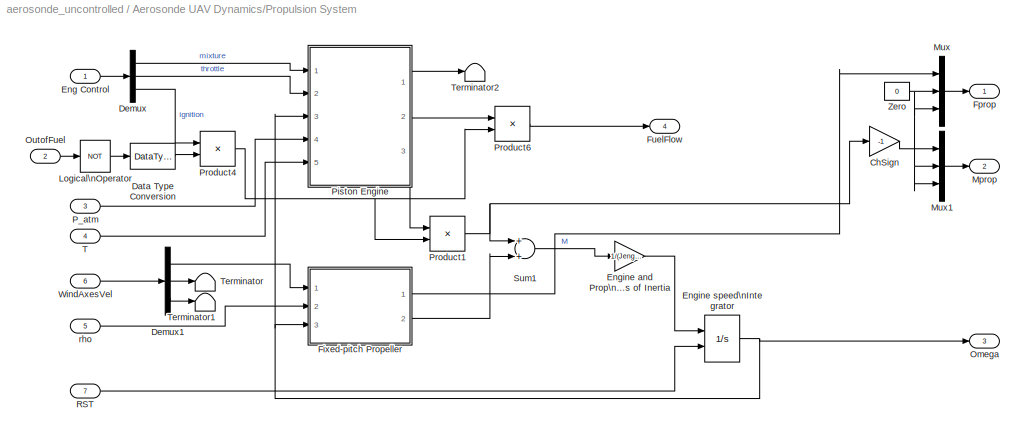
BLOCK [SubSystem] Aerosonde UAV Dynamics/Propulsion System
  FunctionWithSeparateData = off
  MaskCallbackString = |||||||||||
  MaskDescription = The block models a general aviation propulsion system including a piston engine and a fixed-pitch propeller.
  MaskEnableString = on,on,on,on,on,on,on,on,on,on,on,on
  MaskHelp = The block provides a general aviation propulsion system using the AeroSim piston engine and fixed-pitch propeller models.\n<P><B>Inputs:</B>\n<LI>Control = the 3x1 engine control vector [Throttle Mixture Ignition]</LI>\n<LI>OutofFuel = the out-of-fuel flag (0 or 1)</LI>\n<LI>p = the static pressure at current altitude, in Pa</LI>\n<LI>T = the air temperature at current altitude, in K</LI>\n<LI>rho...<+1764ch>
  MaskHideContents = off
  MaskIconFrame = on
  MaskIconOpaque = on
  MaskIconRotate = none
  MaskIconUnits = autoscale
  MaskPortRotate = default
  MaskPromptString = Initial engine speed:|Engine RPM vector:|Engine MAP vector:|Engine fuel flow look-up table:|Engine power look-up table:|Engine moment of inertia:|Propeller advance ratio vector:|Propeller coefficient of thrust vector:|Propeller coefficient of power vector:|Propeller radius:|Propeller moment of inertia:|Sea-level temperature:
  MaskStyleString = edit,edit,edit,edit,edit,edit,edit,edit,edit,edit,edit,edit
  MaskToolTipString = on,on,on,on,on,on,on,on,on,on,on,on
  MaskTunableValueString = on,on,on,on,on,on,on,on,on,on,on,on
  MaskType = General-aviation propulsion system
  MaskValueString = Omega0|as.RPM|as.MAP|as.FuelFlow|as.Power|as.Jeng|as.J|as.CT|as.CP|as.Rprop|as.Jprop|as.TSL
  MaskVariables = OmegaIni=@1;RPM=@2;MAP=@3;FuelFlow=@4;Power=@5;Jeng=@6;J=@7;CT=@8;CP=@9;Rprop=@10;Jprop=@11;TSL=@12;
  MaskVisibilityString = on,on,on,on,on,on,on,on,on,on,on,on
  MinAlgLoopOccurrences = off
  Opaque = off
  Ports = [7, 4]
  PropExecContextOutsideSubsystem = off
  RTWSystemCode = Auto
  RequestExecContextInheritance = off
  SID = 568
BLOCK [Gain] Aerosonde UAV Dynamics/Propulsion System/ChSign
  Gain = -1
  SID = 576
BLOCK [DataTypeConversion] Aerosonde UAV Dynamics/Propulsion System/Data Type Conversion
  OutDataTypeStr = double
  SID = 577
BLOCK [Demux] Aerosonde UAV Dynamics/Propulsion System/Demux
  Outputs = 3
  Ports = [1, 3]
  SID = 578
BLOCK [Demux] Aerosonde UAV Dynamics/Propulsion System/Demux1
  Outputs = 3
  Ports = [1, 3]
  SID = 579
BLOCK [Inport] Aerosonde UAV Dynamics/Propulsion System/Eng Control
  IconDisplay = Port number
  PortDimensions = [3 1]
  SID = 569
BLOCK [Gain] Aerosonde UAV Dynamics/Propulsion System/Engine and Prop\nMoments of Inertia
  Gain = 1/(Jeng+Jprop)
  SID = 580
BLOCK [Integrator] Aerosonde UAV Dynamics/Propulsion System/Engine speed\nIntegrator
  ExternalReset = rising
  InitialCondition = OmegaIni
  LimitOutput = on
  LowerSaturationLimit = 0
  Ports = [2, 1]
  SID = 581
BLOCK [SubSystem] Aerosonde UAV Dynamics/Propulsion System/Fixed-pitch Propeller
  FunctionWithSeparateData = off
  MaskHideContents = off
  MinAlgLoopOccurrences = off
  Opaque = off
  Ports = [3, 2]
  PropExecContextOutsideSubsystem = off
  RTWSystemCode = Auto
  RequestExecContextInheritance = off
  SID = 582
BLOCK [Gain] Aerosonde UAV Dynamics/Propulsion System/Fixed-pitch Propeller/4 R^4 // pi^2
  Gain = 4*Rprop^4/pi^2
  SID = 586
BLOCK [Gain] Aerosonde UAV Dynamics/Propulsion System/Fixed-pitch Propeller/4 R^5// pi^3
  Gain = -4*Rprop^5/pi^3
  SID = 587
BLOCK [Inport] Aerosonde UAV Dynamics/Propulsion System/Fixed-pitch Propeller/Airspeed
  IconDisplay = Port number
  OutDataTypeStr = double
  PortDimensions = 1
  SID = 583
BLOCK [Lookup] Aerosonde UAV Dynamics/Propulsion System/Fixed-pitch Propeller/Coeff of\nPower
  InputValues = J
  SID = 588
  Table = CP
BLOCK [Lookup] Aerosonde UAV Dynamics/Propulsion System/Fixed-pitch Propeller/Coefficient \nof Thrust
  InputValues = J
  SID = 589
  Table = CT
BLOCK [Outport] Aerosonde UAV Dynamics/Propulsion System/Fixed-pitch Propeller/Fprop
  IconDisplay = Port number
  SID = 596
BLOCK [Outport] Aerosonde UAV Dynamics/Propulsion System/Fixed-pitch Propeller/Mprop
  IconDisplay = Port number
  Port = 2
  SID = 597
BLOCK [Inport] Aerosonde UAV Dynamics/Propulsion System/Fixed-pitch Propeller/Omega
  IconDisplay = Port number
  OutDataTypeStr = double
  Port = 3
  PortDimensions = 1
  SID = 585
BLOCK [Math] Aerosonde UAV Dynamics/Propulsion System/Fixed-pitch Propeller/Omega^2
  Operator = square
  Ports = [1, 1]
  SID = 590
BLOCK [Product] Aerosonde UAV Dynamics/Propulsion System/Fixed-pitch Propeller/Va//Omega
  Inputs = */
  Ports = [2, 1]
  RndMeth = Floor
  SID = 591
BLOCK [Gain] Aerosonde UAV Dynamics/Propulsion System/Fixed-pitch Propeller/pi//R
  Gain = pi/Rprop
  SID = 592
BLOCK [Inport] Aerosonde UAV Dynamics/Propulsion System/Fixed-pitch Propeller/rho
  IconDisplay = Port number
  OutDataTypeStr = double
  Port = 2
  PortDimensions = 1
  SID = 584
BLOCK [Product] Aerosonde UAV Dynamics/Propulsion System/Fixed-pitch Propeller/rho Omega^2 
  Ports = [2, 1]
  RndMeth = Floor
  SID = 593
BLOCK [Product] Aerosonde UAV Dynamics/Propulsion System/Fixed-pitch Propeller/rho Omega^2 C_P
  Ports = [2, 1]
  RndMeth = Floor
  SID = 594
BLOCK [Product] Aerosonde UAV Dynamics/Propulsion System/Fixed-pitch Propeller/rho Omega^2 C_T
  Ports = [2, 1]
  RndMeth = Floor
  SID = 595
BLOCK [Outport] Aerosonde UAV Dynamics/Propulsion System/Fprop
  IconDisplay = Port number
  SID = 641
BLOCK [Outport] Aerosonde UAV Dynamics/Propulsion System/FuelFlow
  IconDisplay = Port number
  Port = 4
  SID = 644
BLOCK [Logic] Aerosonde UAV Dynamics/Propulsion System/Logical\nOperator
  Operator = NOT
  Ports = [1, 1]
  SID = 598
BLOCK [Outport] Aerosonde UAV Dynamics/Propulsion System/Mprop
  IconDisplay = Port number
  Port = 2
  SID = 642
BLOCK [Mux] Aerosonde UAV Dynamics/Propulsion System/Mux
  DisplayOption = bar
  Inputs = 3
  Ports = [3, 1]
  SID = 599
BLOCK [Mux] Aerosonde UAV Dynamics/Propulsion System/Mux1
  DisplayOption = bar
  Inputs = 3
  Ports = [3, 1]
  SID = 600
BLOCK [Outport] Aerosonde UAV Dynamics/Propulsion System/Omega
  IconDisplay = Port number
  Port = 3
  SID = 643
BLOCK [Inport] Aerosonde UAV Dynamics/Propulsion System/OutofFuel
  IconDisplay = Port number
  Port = 2
  PortDimensions = 1
  SID = 570
BLOCK [Inport] Aerosonde UAV Dynamics/Propulsion System/P_atm
  IconDisplay = Port number
  OutDataTypeStr = double
  Port = 3
  PortDimensions = 1
  SID = 571
BLOCK [SubSystem] Aerosonde UAV Dynamics/Propulsion System/Piston Engine
  FunctionWithSeparateData = off
  MaskCallbackString = ||||
  MaskDescription = The piston engine model computes the engine parameters at current throttle setting, engine rpm, and altitude.
  MaskEnableString = on,on,on,on,on
  MaskHelp = The block provides a piston engine model based on look-up tables for manifold pressure, engine speed (rpm), fuel flow and power.\n<P><B>Inputs:</B>\n<LI>Thr = the throttle command (as a fraction of atmospheric pressure)</LI>\n<LI>Mix = the air to fuel mixture ratio</LI>\n<LI>Omega = the engine shaft rotation speed</LI>\n<LI>p = the atmospheric pressure, in Pa</LI>\n<LI>T = the atmospheric temperat...<+815ch>
  MaskHideContents = off
  MaskIconFrame = on
  MaskIconOpaque = on
  MaskIconRotate = none
  MaskIconUnits = autoscale
  MaskPortRotate = default
  MaskPromptString = RPM vector:|MAP vector:|Fuel flow 2-D look-up table:|Power 2-D look-up table:|Sea-level temperature:
  MaskStyleString = edit,edit,edit,edit,edit
  MaskToolTipString = on,on,on,on,on
  MaskTunableValueString = on,on,on,on,on
  MaskType = Piston Engine
  MaskValueString = RPM|MAP|FuelFlow|Power|TSL
  MaskVariables = RPM=@1;MAP=@2;fflow=@3;Power=@4;TSL=@5;
  MaskVisibilityString = on,on,on,on,on
  MinAlgLoopOccurrences = off
  Opaque = off
  Ports = [5, 3]
  PropExecContextOutsideSubsystem = off
  RTWSystemCode = Auto
  RequestExecContextInheritance = off
  SID = 601
BLOCK [Outport] Aerosonde UAV Dynamics/Propulsion System/Piston Engine/AirFlow
  IconDisplay = Port number
  SID = 630
BLOCK [SubSystem] Aerosonde UAV Dynamics/Propulsion System/Piston Engine/Altitude correction \nfor  Power
  FunctionWithSeparateData = off
  MaskHideContents = off
  MinAlgLoopOccurrences = off
  Opaque = off
  Ports = [1, 1]
  PropExecContextOutsideSubsystem = off
  RTWSystemCode = Auto
  RequestExecContextInheritance = off
  SID = 607
BLOCK [Math] Aerosonde UAV Dynamics/Propulsion System/Piston Engine/Altitude correction \nfor  Power/Math\nFunction
  Operator = sqrt
  Ports = [1, 1]
  SID = 609
BLOCK [Outport] Aerosonde UAV Dynamics/Propulsion System/Piston Engine/Altitude correction \nfor  Power/Power correction
  IconDisplay = Port number
  SID = 612
BLOCK [Product] Aerosonde UAV Dynamics/Propulsion System/Piston Engine/Altitude correction \nfor  Power/Product of\nElements
  InputSameDT = off
  Inputs = /
  OutDataTypeStr = Inherit: Inherit via internal rule
  Ports = [1, 1]
  RndMeth = Floor
  SID = 610
  SaturateOnIntegerOverflow = off
BLOCK [Gain] Aerosonde UAV Dynamics/Propulsion System/Piston Engine/Altitude correction \nfor  Power/Sea-level\ntemperature 
  Gain = TSL
  SID = 611
BLOCK [Inport] Aerosonde UAV Dynamics/Propulsion System/Piston Engine/Altitude correction \nfor  Power/T
  IconDisplay = Port number
  SID = 608
BLOCK [Product] Aerosonde UAV Dynamics/Propulsion System/Piston Engine/Engine\ntorque
  Inputs = */
  Ports = [2, 1]
  RndMeth = Floor
  SID = 613
BLOCK [Lookup2D] Aerosonde UAV Dynamics/Propulsion System/Piston Engine/Fuel flow\nLUT
  ColumnIndex = MAP
  RowIndex = RPM
  SID = 614
  Table = fflow
BLOCK [Outport] Aerosonde UAV Dynamics/Propulsion System/Piston Engine/FuelFlow
  IconDisplay = Port number
  Port = 2
  SID = 631
BLOCK [Product] Aerosonde UAV Dynamics/Propulsion System/Piston Engine/Get air flow
  Ports = [2, 1]
  RndMeth = Floor
  SID = 615
BLOCK [SubSystem] Aerosonde UAV Dynamics/Propulsion System/Piston Engine/Intake
  FunctionWithSeparateData = off
  MaskHideContents = off
  MinAlgLoopOccurrences = off
  Opaque = off
  Ports = [2, 1]
  PropExecContextOutsideSubsystem = off
  RTWSystemCode = Auto
  RequestExecContextInheritance = off
  SID = 616
BLOCK [Product] Aerosonde UAV Dynamics/Propulsion System/Piston Engine/Intake/Get MAP
  Ports = [2, 1]
  RndMeth = Floor
  SID = 619
BLOCK [Outport] Aerosonde UAV Dynamics/Propulsion System/Piston Engine/Intake/MAP
  IconDisplay = Port number
  SID = 625
BLOCK [Constant] Aerosonde UAV Dynamics/Propulsion System/Piston Engine/Intake/MAP min
  SID = 620
  Value = as.MAPmin
BLOCK [Inport] Aerosonde UAV Dynamics/Propulsion System/Piston Engine/Intake/P_atm
  IconDisplay = Port number
  OutDataTypeStr = double
  Port = 2
  PortDimensions = 1
  SID = 618
BLOCK [Saturate] Aerosonde UAV Dynamics/Propulsion System/Piston Engine/Intake/Saturation
  InputPortMap = u0
  LowerLimit = as.MAPmin
  Ports = [1, 1]
  SID = 621
  UpperLimit = inf
BLOCK [Sum] Aerosonde UAV Dynamics/Propulsion System/Piston Engine/Intake/Sum
  IconShape = round
  Inputs = |+-
  Ports = [2, 1]
  SID = 622
BLOCK [Sum] Aerosonde UAV Dynamics/Propulsion System/Piston Engine/Intake/Sum1
  IconShape = round
  Inputs = |++
  Ports = [2, 1]
  SID = 623
BLOCK [Inport] Aerosonde UAV Dynamics/Propulsion System/Piston Engine/Intake/Thr
  IconDisplay = Port number
  OutDataTypeStr = double
  PortDimensions = 1
  SID = 617
BLOCK [Gain] Aerosonde UAV Dynamics/Propulsion System/Piston Engine/Intake/kPa
  Gain = 1/1000
  SID = 624
BLOCK [Inport] Aerosonde UAV Dynamics/Propulsion System/Piston Engine/Mix
  IconDisplay = Port number
  OutDataTypeStr = double
  Port = 2
  PortDimensions = 1
  SID = 603
BLOCK [Inport] Aerosonde UAV Dynamics/Propulsion System/Piston Engine/Omega
  IconDisplay = Port number
  OutDataTypeStr = double
  Port = 3
  PortDimensions = 1
  SID = 604
BLOCK [Inport] Aerosonde UAV Dynamics/Propulsion System/Piston Engine/P_atm
  IconDisplay = Port number
  OutDataTypeStr = double
  Port = 4
  PortDimensions = 1
  SID = 605
BLOCK [Lookup2D] Aerosonde UAV Dynamics/Propulsion System/Piston Engine/Power LUT
  ColumnIndex = MAP
  RowIndex = RPM
  SID = 626
  Table = Power
BLOCK [Product] Aerosonde UAV Dynamics/Propulsion System/Piston Engine/Power at\naltitude
  Ports = [2, 1]
  RndMeth = Floor
  SID = 627
BLOCK [Inport] Aerosonde UAV Dynamics/Propulsion System/Piston Engine/T
  IconDisplay = Port number
  OutDataTypeStr = double
  Port = 5
  PortDimensions = 1
  SID = 606
BLOCK [Inport] Aerosonde UAV Dynamics/Propulsion System/Piston Engine/Thr
  IconDisplay = Port number
  OutDataTypeStr = double
  PortDimensions = 1
  SID = 602
BLOCK [Outport] Aerosonde UAV Dynamics/Propulsion System/Piston Engine/Torque
  IconDisplay = Port number
  Port = 3
  SID = 632
BLOCK [Gain] Aerosonde UAV Dynamics/Propulsion System/Piston Engine/g//hr 2 kg//s
  Gain = 1/1000/3600
  SID = 628
BLOCK [Gain] Aerosonde UAV Dynamics/Propulsion System/Piston Engine/rad//s 2 RPM
  Gain = 30/pi
  SID = 629
BLOCK [Product] Aerosonde UAV Dynamics/Propulsion System/Product1
  Ports = [2, 1]
  RndMeth = Floor
  SID = 633
BLOCK [Product] Aerosonde UAV Dynamics/Propulsion System/Product4
  Ports = [2, 1]
  RndMeth = Floor
  SID = 634
BLOCK [Product] Aerosonde UAV Dynamics/Propulsion System/Product6
  Ports = [2, 1]
  RndMeth = Floor
  SID = 635
BLOCK [Inport] Aerosonde UAV Dynamics/Propulsion System/RST
  IconDisplay = Port number
  OutDataTypeStr = double
  Port = 7
  PortDimensions = 1
  SID = 575
BLOCK [Sum] Aerosonde UAV Dynamics/Propulsion System/Sum1
  Ports = [2, 1]
  SID = 636
BLOCK [Inport] Aerosonde UAV Dynamics/Propulsion System/T
  IconDisplay = Port number
  OutDataTypeStr = double
  Port = 4
  PortDimensions = 1
  SID = 572
BLOCK [Terminator] Aerosonde UAV Dynamics/Propulsion System/Terminator
  SID = 637
BLOCK [Terminator] Aerosonde UAV Dynamics/Propulsion System/Terminator1
  SID = 638
BLOCK [Terminator] Aerosonde UAV Dynamics/Propulsion System/Terminator2
  SID = 639
BLOCK [Inport] Aerosonde UAV Dynamics/Propulsion System/WindAxesVel
  IconDisplay = Port number
  Port = 6
  PortDimensions = [3 1]
  SID = 574
BLOCK [Constant] Aerosonde UAV Dynamics/Propulsion System/Zero
  SID = 640
  Value = 0
BLOCK [Inport] Aerosonde UAV Dynamics/Propulsion System/rho
  IconDisplay = Port number
  OutDataTypeStr = double
  Port = 5
  PortDimensions = 1
  SID = 573
BLOCK [Inport] Aerosonde UAV Dynamics/RST
  IconDisplay = Port number
  Port = 2
  SID = 354
BLOCK [Outport] Aerosonde UAV Dynamics/Sensors
  IconDisplay = Port number
  Port = 2
  SID = 660
BLOCK [Outport] Aerosonde UAV Dynamics/States
  IconDisplay = Port number
  SID = 659
BLOCK [Terminator] Aerosonde UAV Dynamics/Terminator
  SID = 645
BLOCK [SubSystem] Aerosonde UAV Dynamics/Total Moment
  FunctionWithSeparateData = off
  MaskHideContents = off
  MinAlgLoopOccurrences = off
  Opaque = off
  Ports = [5, 2]
  PropExecContextOutsideSubsystem = off
  RTWSystemCode = Auto
  RequestExecContextInheritance = off
  SID = 646
BLOCK [Inport] Aerosonde UAV Dynamics/Total Moment/CGpos
  IconDisplay = Port number
  Port = 5
  PortDimensions = 3
  SID = 651
BLOCK [Inport] Aerosonde UAV Dynamics/Total Moment/Faero
  IconDisplay = Port number
  PortDimensions = 3
  SID = 647
BLOCK [Outport] Aerosonde UAV Dynamics/Total Moment/Fcg
  IconDisplay = Port number
  SID = 656
BLOCK [Inport] Aerosonde UAV Dynamics/Total Moment/Fprop
  IconDisplay = Port number
  Port = 3
  PortDimensions = 3
  SID = 649
BLOCK [Inport] Aerosonde UAV Dynamics/Total Moment/Maero
  IconDisplay = Port number
  Port = 2
  PortDimensions = 3
  SID = 648
BLOCK [Outport] Aerosonde UAV Dynamics/Total Moment/Mcg
  IconDisplay = Port number
  Port = 2
  SID = 657
BLOCK [Reference] Aerosonde UAV Dynamics/Total Moment/Moments about CG \ndue to Propulsion  \nForces  REF=aerolibbdyn/Moments about CG \ndue to Forces
  FunctionWithSeparateData = off
  GeneratePreprocessorConditionals = off
  Ports = [3, 1]
  RTWMemSecDataConstants = Inherit from model
  RTWMemSecDataInternal = Inherit from model
  RTWMemSecDataParameters = Inherit from model
  RTWMemSecFuncExecute = Inherit from model
  RTWMemSecFuncInitTerm = Inherit from model
  SID = 652
  ShowPortLabels = FromPortIcon
  SourceBlock = aerolibbdyn/Moments about CG \ndue to Forces
  SourceType = Moments About CG Due To Forces
  SystemSampleTime = -1
BLOCK [Inport] Aerosonde UAV Dynamics/Total Moment/Mprop
  IconDisplay = Port number
  Port = 4
  PortDimensions = 3
  SID = 650
BLOCK [Sum] Aerosonde UAV Dynamics/Total Moment/Sum1
  Inputs = +++
  Ports = [3, 1]
  SID = 653
BLOCK [Sum] Aerosonde UAV Dynamics/Total Moment/Total forces \n(excluding g)
  Ports = [2, 1]
  SID = 654
BLOCK [Constant] Aerosonde UAV Dynamics/Total Moment/r_prop
  OutDataTypeStr = double
  SID = 655
  Value = as.rHub
BLOCK [Inport] Aerosonde UAV Dynamics/V_wind
  IconDisplay = Port number
  Port = 3
  SID = 355
BLOCK [Outport] Aerosonde UAV Dynamics/VelW
  IconDisplay = Port number
  Port = 3
  SID = 661
BLOCK [Inport] Aerosonde UAV Dynamics/omega_wind
  IconDisplay = Port number
  Port = 4
  SID = 356
BLOCK [Constant] Aerosonde UAV Dynamics/r_aero
  SID = 658
  Value = as.rAC
BLOCK [Display] Aircraft states
  Decimation = 1
  Lockdown = off
  Ports = [1]
  SID = 675
BLOCK [Display] Airspeed
  Decimation = 1
  Lockdown = off
  Ports = [1]
  SID = 321
BLOCK [Scope] Bank
  DataFormat = StructureWithTime
  Floating = off
  LimitDataPoints = off
  NumInputPorts = 1
  Ports = [1]
  SID = 322
  SampleTime = 0
  TimeRange = 60
  YMax = -54.75
  YMin = -58
BLOCK [Display] Bank angle
  Decimation = 1
  Lockdown = off
  Ports = [1]
  SID = 323
BLOCK [Constant] Controls\n[flap, elevator, aileron, rudder\nthrottle, mixture, ignition]
  SID = 324
  Value = control_0
BLOCK [Demux] Demux
  Outputs = 3
  Ports = [1, 3]
  SID = 325
BLOCK [Demux] Demux1
  Outputs = 3
  Ports = [1, 3]
  SID = 326
BLOCK [Reference] FlightGear\nPreconfigured\n6DoF Animation  REF=aerolibfltsims/FlightGear\nPreconfigured\n6DoF Animation
  AttributesFormatString = Version Selected: %<xFlightGearVersion>
  DestinationIpAddress = 127.0.0.1
  DestinationPort = 5502
  FunctionWithSeparateData = off
  GeneratePreprocessorConditionals = off
  Ports = [1]
  RTWMemSecDataConstants = Inherit from model
  RTWMemSecDataInternal = Inherit from model
  RTWMemSecDataParameters = Inherit from model
  RTWMemSecFuncExecute = Inherit from model
  RTWMemSecFuncInitTerm = Inherit from model
  SID = 676
  SampleTime = -1
  ShowPortLabels = FromPortIcon
  SourceBlock = aerolibfltsims/FlightGear\nPreconfigured\n6DoF Animation
  SourceType = FlightGearQuick6DoFAnimation
  SystemSampleTime = -1
  xFlightGearVersion = v2.0
BLOCK [Reference] Generate\nRun Script  REF=aerolibfltsims/Generate\nRun Script
  AirportId = KSFO
  DestinationPort = 5502
  FlightGearBaseDirectory = C:\\Program Files\\FlightGear
  FunctionWithSeparateData = off
  GenerateFile = off
  GeneratePreprocessorConditionals = off
  GeometryModelName = Dragonfly
  InitialAltitude = 7224
  InitialHeading = 113
  OffsetAzimuth = 0
  OffsetDistance = 4.72
  OutputFileName = runfg.bat
  Ports = []
  RTWMemSecDataConstants = Inherit from model
  RTWMemSecDataInternal = Inherit from model
  RTWMemSecDataParameters = Inherit from model
  RTWMemSecFuncExecute = Inherit from model
  RTWMemSecFuncInitTerm = Inherit from model
  RunwayId = 10L
  SID = 678
  ShowPortLabels = FromPortIcon
  SourceBlock = aerolibfltsims/Generate\nRun Script
  SourceType = Generate FlightGear Run Script
  SystemSampleTime = -1
BLOCK [Display] Heading
  Decimation = 1
  Lockdown = off
  Ports = [1]
  SID = 327
BLOCK [Display] Pitch angle
  Decimation = 1
  Lockdown = off
  Ports = [1]
  SID = 328
BLOCK [Reference] Radians\nto Degrees  REF=simulink_extras/Transformations/Radians\nto Degrees
  FunctionWithSeparateData = off
  GeneratePreprocessorConditionals = off
  Ports = [1, 1]
  RTWMemSecDataConstants = Inherit from model
  RTWMemSecDataInternal = Inherit from model
  RTWMemSecDataParameters = Inherit from model
  RTWMemSecFuncExecute = Inherit from model
  RTWMemSecFuncInitTerm = Inherit from model
  SID = 329
  ShowPortLabels = FromPortIcon
  SourceBlock = simulink_extras/Transformations/Radians\nto Degrees
  SourceType = RadiansToDegrees
  SystemSampleTime = -1
BLOCK [Reference] Radians\nto Degrees1  REF=simulink_extras/Transformations/Radians\nto Degrees
  FunctionWithSeparateData = off
  GeneratePreprocessorConditionals = off
  Ports = [1, 1]
  RTWMemSecDataConstants = Inherit from model
  RTWMemSecDataInternal = Inherit from model
  RTWMemSecDataParameters = Inherit from model
  RTWMemSecFuncExecute = Inherit from model
  RTWMemSecFuncInitTerm = Inherit from model
  SID = 330
  ShowPortLabels = FromPortIcon
  SourceBlock = simulink_extras/Transformations/Radians\nto Degrees
  SourceType = RadiansToDegrees
  SystemSampleTime = -1
BLOCK [Reference] Radians\nto Degrees2  REF=simulink_extras/Transformations/Radians\nto Degrees
  FunctionWithSeparateData = off
  GeneratePreprocessorConditionals = off
  Ports = [1, 1]
  RTWMemSecDataConstants = Inherit from model
  RTWMemSecDataInternal = Inherit from model
  RTWMemSecDataParameters = Inherit from model
  RTWMemSecFuncExecute = Inherit from model
  RTWMemSecFuncInitTerm = Inherit from model
  SID = 331
  ShowPortLabels = FromPortIcon
  SourceBlock = simulink_extras/Transformations/Radians\nto Degrees
  SourceType = RadiansToDegrees
  SystemSampleTime = -1
BLOCK [Constant] Reset
  SID = 332
  Value = 0
BLOCK [Selector] Selector
  IndexOptions = Index vector (dialog)
  Indices = [10 11 12 7 8 9]
  InputPortWidth = 14
  OutputSizes = 1
  Ports = [1, 1]
  SID = 677
BLOCK [Display] Sideslip
  Decimation = 1
  Lockdown = off
  Ports = [1]
  SID = 333
BLOCK [Terminator] Terminator
  SID = 334
BLOCK [Terminator] Terminator1
  SID = 335
BLOCK [Terminator] Terminator2
  SID = 336
BLOCK [Terminator] Terminator3
  SID = 337
BLOCK [Terminator] Terminator4
  SID = 338
BLOCK [SubSystem] Wind Model
  FunctionWithSeparateData = off
  MaskHideContents = off
  MinAlgLoopOccurrences = off
  Opaque = off
  Ports = [3, 2]
  PropExecContextOutsideSubsystem = off
  RTWSystemCode = Auto
  RequestExecContextInheritance = off
  SID = 339
BLOCK [Inport] Wind Model/DCM
  IconDisplay = Port number
  Port = 2
  SID = 341
BLOCK [DotProduct] Wind Model/Dot Product
  InputSameDT = off
  OutDataTypeStr = Inherit: Inherit via internal rule
  SID = 343
  SaturateOnIntegerOverflow = on
BLOCK [Reference] Wind Model/Dryden Wind Turbulence Model \n(Continuous (+q +r))  REF=aerolibwind2/Dryden Wind Turbulence Model \n(Continuous (+q -r))
  FunctionWithSeparateData = off
  GeneratePreprocessorConditionals = off
  L_high = 533.4
  Ports = [3, 2]
  RTWMemSecDataConstants = Inherit from model
  RTWMemSecDataInternal = Inherit from model
  RTWMemSecDataParameters = Inherit from model
  RTWMemSecFuncExecute = Inherit from model
  RTWMemSecFuncInitTerm = Inherit from model
  SID = 344
  Seed = [23341 23342 23343 23344]
  ShowPortLabels = FromPortIcon
  SourceBlock = aerolibwind2/Dryden Wind Turbulence Model \n(Continuous (+q -r))
  SourceType = Wind Turbulence Model
  SystemSampleTime = -1
  T_on = off
  TurbProb = 10^-2 - Light
  W20 = 15
  Wdeg = 0
  Wingspan = aerosonde.b
  model = Continuous Dryden (+q -r)
  spec = MIL-F-8785C
  ts = 0.02
  units = Metric (MKS)
BLOCK [Reference] Wind Model/Horizontal Wind Model  REF=aerolibwind2/Horizontal Wind Model
  FunctionWithSeparateData = off
  GeneratePreprocessorConditionals = off
  Ports = [1, 1]
  RTWMemSecDataConstants = Inherit from model
  RTWMemSecDataInternal = Inherit from model
  RTWMemSecDataParameters = Inherit from model
  RTWMemSecFuncExecute = Inherit from model
  RTWMemSecFuncInitTerm = Inherit from model
  SID = 345
  ShowPortLabels = FromPortIcon
  SourceBlock = aerolibwind2/Horizontal Wind Model
  SourceType = Horizontal Wind Model
  SystemSampleTime = -1
  Vw_source = Internal
  Vwind = 0
  W_source = Internal
  Wdeg = 0
  units = Metric (MKS)
BLOCK [Sum] Wind Model/Sum
  IconShape = round
  Inputs = +++
  Ports = [3, 1]
  SID = 346
BLOCK [Math] Wind Model/V
  Operator = sqrt
  Ports = [1, 1]
  SID = 347
BLOCK [Inport] Wind Model/V_E (m//s)
  IconDisplay = Port number
  Port = 3
  SID = 342
BLOCK [Outport] Wind Model/V_wind
  IconDisplay = Port number
  SID = 349
BLOCK [Reference] Wind Model/Wind Shear Model  REF=aerolibwind2/Wind Shear Model
  FunctionWithSeparateData = off
  GeneratePreprocessorConditionals = off
  Ports = [2, 1]
  RTWMemSecDataConstants = Inherit from model
  RTWMemSecDataInternal = Inherit from model
  RTWMemSecDataParameters = Inherit from model
  RTWMemSecFuncExecute = Inherit from model
  RTWMemSecFuncInitTerm = Inherit from model
  SID = 348
  ShowPortLabels = FromPortIcon
  SourceBlock = aerolibwind2/Wind Shear Model
  SourceType = Wind Shear Model
  SystemSampleTime = -1
  W_20 = 0
  Wdeg = 0
  phase = Category C - Terminal Flight Phase
  units = Metric (MKS)
BLOCK [Inport] Wind Model/altitude\nh (m)
  IconDisplay = Port number
  SID = 340
BLOCK [Outport] Wind Model/omega_wind
  IconDisplay = Port number
  Port = 2
  SID = 350
ANNOTATION (root): Aerosonde UAV (v2011a)\nBased on the AeroSim Blockset\nAdapted by JFW (18 Feb 2011) for the Mathworks Aerospce Blockset\nSimulation sample time: 20 ms\nAircraft control: open-loop
ANNOTATION (root): Groundspeed X-axis\nGroundspeed Y-axis\nGroundspeed Z-axis\nRoll rate p\nPitch rate q\nYaw rate r \nEuler angle \\phi\nEuler angle \\theta\nEuler angle <path> mass\nEngine speed \\Omega
ANNOTATION (root): Spiral mode instability
ANNOTATION Aerosonde UAV Dynamics: Aerodynamic Model
ANNOTATION Aerosonde UAV Dynamics: Inputs
ANNOTATION Aerosonde UAV Dynamics: Outputs
ANNOTATION Aerosonde UAV Dynamics: Propulsion Model
ANNOTATION Aerosonde UAV Dynamics: Solve equations of motion
ANNOTATION Aerosonde UAV Dynamics: measured acceleration
ANNOTATION Aerosonde UAV Dynamics: t qbar P
ANNOTATION Aerosonde UAV Dynamics/Aerodynamics: Aerodynamic Coefficients
ANNOTATION Aerosonde UAV Dynamics/Aerodynamics: Aerodynamic Model
ANNOTATION Aerosonde UAV Dynamics/Aerodynamics: Aerodynamic Parameters
ANNOTATION Aerosonde UAV Dynamics/Aerodynamics: Inputs
ANNOTATION Aerosonde UAV Dynamics/Aerodynamics: Outputs
ANNOTATION Aerosonde UAV Dynamics/Aerodynamics/Force Coefficients: Force coefficients
ANNOTATION Aerosonde UAV Dynamics/Aerodynamics/Force Coefficients/Drag Coefficients: Drag coefficient
ANNOTATION Aerosonde UAV Dynamics/Aerodynamics/Force Coefficients/Lift Coefficients: Lift Coefficients
ANNOTATION Aerosonde UAV Dynamics/Aerodynamics/Force Coefficients/Side Force Coefficients: Side force coefficients
ANNOTATION Aerosonde UAV Dynamics/Aerodynamics/Moment Coefficients: Moment coefficients
ANNOTATION Aerosonde UAV Dynamics/Aerodynamics/Moment Coefficients/Roll Moment Coefficients: Roll moment coefficient
ANNOTATION Aerosonde UAV Dynamics/Aerodynamics/Moment Coefficients/Yaw Moment Coefficients: Yaw moment coefficient
ANNOTATION Aerosonde UAV Dynamics/Aerodynamics/Wind-axes Velocities/Calculate \nalphadot: Calculate alphadot
ANNOTATION Aerosonde UAV Dynamics/Aerodynamics/Wind-axes Velocities/Calculate \nalphadot: W
ANNOTATION Aerosonde UAV Dynamics/Aircraft Mass & Inertia: Compute current aircraft mass
ANNOTATION Aerosonde UAV Dynamics/Propulsion System/Fixed-pitch Propeller: Fixed-pitch \nPropeller
ANNOTATION Aerosonde UAV Dynamics/Propulsion System/Piston Engine: Compute MAP from \nthrottle area fraction
ANNOTATION Aerosonde UAV Dynamics/Propulsion System/Piston Engine: Engine parameter\nlook-up tables
ANNOTATION Aerosonde UAV Dynamics/Propulsion System/Piston Engine/Altitude correction \nfor  Power: Altitude correction for Power
ANNOTATION Aerosonde UAV Dynamics/Total Moment: Sum forces and moments
ANNOTATION Aerosonde UAV Dynamics/Total Moment: Total moments at CG location
ANNOTATION Wind Model: Wind Models
LINE Aerosonde UAV Dynamics/Aerodynamic\nForces and Moments:1 -> Aerosonde UAV Dynamics/Total Moment:1
LINE Aerosonde UAV Dynamics/Aerodynamic\nForces and Moments:2 -> Aerosonde UAV Dynamics/Total Moment:2
NET Aerosonde UAV Dynamics/Aerodynamics/AeroCon:1 -> Aerosonde UAV Dynamics/Aerodynamics/Force Coefficients:2, Aerosonde UAV Dynamics/Aerodynamics/Moment Coefficients:2
NET Aerosonde UAV Dynamics/Aerodynamics/Force Coefficients/2c:1 -> Aerosonde UAV Dynamics/Aerodynamics/Force Coefficients/Lift Coefficients:5, Aerosonde UAV Dynamics/Aerodynamics/Force Coefficients/Side Force Coefficients:4
LINE Aerosonde UAV Dynamics/Aerodynamics/Force Coefficients/AlphaDot:1 -> Aerosonde UAV Dynamics/Aerodynamics/Force Coefficients/Lift Coefficients:3
NET Aerosonde UAV Dynamics/Aerodynamics/Force Coefficients/AngularRates:1 -> Aerosonde UAV Dynamics/Aerodynamics/Force Coefficients/Lift Coefficients:4, Aerosonde UAV Dynamics/Aerodynamics/Force Coefficients/Side Force Coefficients:3
LINE Aerosonde UAV Dynamics/Aerodynamics/Force Coefficients/ChSign1:1 -> Aerosonde UAV Dynamics/Aerodynamics/Force Coefficients/Mux:3
LINE Aerosonde UAV Dynamics/Aerodynamics/Force Coefficients/ChSign:1 -> Aerosonde UAV Dynamics/Aerodynamics/Force Coefficients/Mux:1
NET Aerosonde UAV Dynamics/Aerodynamics/Force Coefficients/Control:1 -> Aerosonde UAV Dynamics/Aerodynamics/Force Coefficients/Drag Coefficients:1, Aerosonde UAV Dynamics/Aerodynamics/Force Coefficients/Lift Coefficients:2, Aerosonde UAV Dynamics/Aerodynamics/Force Coefficients/Side Force Coefficients:2
LINE Aerosonde UAV Dynamics/Aerodynamics/Force Coefficients/DCM':1 -> Aerosonde UAV Dynamics/Aerodynamics/Force Coefficients/transform to \nbody axes:1
LINE Aerosonde UAV Dynamics/Aerodynamics/Force Coefficients/Demux2:1 -> Aerosonde UAV Dynamics/Aerodynamics/Force Coefficients/2c:1
NET Aerosonde UAV Dynamics/Aerodynamics/Force Coefficients/Demux2:2 -> Aerosonde UAV Dynamics/Aerodynamics/Force Coefficients/Mux1:2, Aerosonde UAV Dynamics/Aerodynamics/Force Coefficients/Side Force Coefficients:1
NET Aerosonde UAV Dynamics/Aerodynamics/Force Coefficients/Demux2:3 -> Aerosonde UAV Dynamics/Aerodynamics/Force Coefficients/Lift Coefficients:1, Aerosonde UAV Dynamics/Aerodynamics/Force Coefficients/Mux1:1
LINE Aerosonde UAV Dynamics/Aerodynamics/Force Coefficients/Direction Cosine Matrix\nBody to Wind:1 -> Aerosonde UAV Dynamics/Aerodynamics/Force Coefficients/DCM':1
LINE Aerosonde UAV Dynamics/Aerodynamics/Force Coefficients/Drag Coefficients/(CL-CL0)^2//(pi e AR):1 -> Aerosonde UAV Dynamics/Aerodynamics/Force Coefficients/Drag Coefficients/Sum1:4
LINE Aerosonde UAV Dynamics/Aerodynamics/Force Coefficients/Drag Coefficients/Abs4:1 -> Aerosonde UAV Dynamics/Aerodynamics/Force Coefficients/Drag Coefficients/CDdf:1
LINE Aerosonde UAV Dynamics/Aerodynamics/Force Coefficients/Drag Coefficients/CDM:1 -> Aerosonde UAV Dynamics/Aerodynamics/Force Coefficients/Drag Coefficients/Sum1:3
LINE Aerosonde UAV Dynamics/Aerodynamics/Force Coefficients/Drag Coefficients/CDdf:1 -> Aerosonde UAV Dynamics/Aerodynamics/Force Coefficients/Drag Coefficients/Sum1:2
LINE Aerosonde UAV Dynamics/Aerodynamics/Force Coefficients/Drag Coefficients/CL min drag:1 -> Aerosonde UAV Dynamics/Aerodynamics/Force Coefficients/Drag Coefficients/Sum:2
LINE Aerosonde UAV Dynamics/Aerodynamics/Force Coefficients/Drag Coefficients/CL:1 -> Aerosonde UAV Dynamics/Aerodynamics/Force Coefficients/Drag Coefficients/Sum:1
LINE Aerosonde UAV Dynamics/Aerodynamics/Force Coefficients/Drag Coefficients/CL^2:1 -> Aerosonde UAV Dynamics/Aerodynamics/Force Coefficients/Drag Coefficients/(CL-CL0)^2//(pi e AR):1
LINE Aerosonde UAV Dynamics/Aerodynamics/Force Coefficients/Drag Coefficients/Constant terms:1 -> Aerosonde UAV Dynamics/Aerodynamics/Force Coefficients/Drag Coefficients/Sum1:1
LINE Aerosonde UAV Dynamics/Aerodynamics/Force Coefficients/Drag Coefficients/Mach:1 -> Aerosonde UAV Dynamics/Aerodynamics/Force Coefficients/Drag Coefficients/CDM:1
LINE Aerosonde UAV Dynamics/Aerodynamics/Force Coefficients/Drag Coefficients/Sum1:1 -> Aerosonde UAV Dynamics/Aerodynamics/Force Coefficients/Drag Coefficients/CD:1
LINE Aerosonde UAV Dynamics/Aerodynamics/Force Coefficients/Drag Coefficients/Sum:1 -> Aerosonde UAV Dynamics/Aerodynamics/Force Coefficients/Drag Coefficients/CL^2:1
LINE Aerosonde UAV Dynamics/Aerodynamics/Force Coefficients/Drag Coefficients/control:1 -> Aerosonde UAV Dynamics/Aerodynamics/Force Coefficients/Drag Coefficients/Abs4:1
LINE Aerosonde UAV Dynamics/Aerodynamics/Force Coefficients/Drag Coefficients:1 -> Aerosonde UAV Dynamics/Aerodynamics/Force Coefficients/ChSign:1
LINE Aerosonde UAV Dynamics/Aerodynamics/Force Coefficients/Lift Coefficients/2V_a:1 -> Aerosonde UAV Dynamics/Aerodynamics/Force Coefficients/Lift Coefficients/CL*c//(2V_a):2
LINE Aerosonde UAV Dynamics/Aerodynamics/Force Coefficients/Lift Coefficients/CL*c//(2V_a):1 -> Aerosonde UAV Dynamics/Aerodynamics/Force Coefficients/Lift Coefficients/Sum2:4
LINE Aerosonde UAV Dynamics/Aerodynamics/Force Coefficients/Lift Coefficients/CL0:1 -> Aerosonde UAV Dynamics/Aerodynamics/Force Coefficients/Lift Coefficients/Sum2:1
LINE Aerosonde UAV Dynamics/Aerodynamics/Force Coefficients/Lift Coefficients/CLM:1 -> Aerosonde UAV Dynamics/Aerodynamics/Force Coefficients/Lift Coefficients/Sum2:5
LINE Aerosonde UAV Dynamics/Aerodynamics/Force Coefficients/Lift Coefficients/CLalpha:1 -> Aerosonde UAV Dynamics/Aerodynamics/Force Coefficients/Lift Coefficients/Sum2:2
LINE Aerosonde UAV Dynamics/Aerodynamics/Force Coefficients/Lift Coefficients/CLalphadot:1 -> Aerosonde UAV Dynamics/Aerodynamics/Force Coefficients/Lift Coefficients/Sum:1
LINE Aerosonde UAV Dynamics/Aerodynamics/Force Coefficients/Lift Coefficients/CLq:1 -> Aerosonde UAV Dynamics/Aerodynamics/Force Coefficients/Lift Coefficients/Sum:2
LINE Aerosonde UAV Dynamics/Aerodynamics/Force Coefficients/Lift Coefficients/Mach:1 -> Aerosonde UAV Dynamics/Aerodynamics/Force Coefficients/Lift Coefficients/CLM:1
LINE Aerosonde UAV Dynamics/Aerodynamics/Force Coefficients/Lift Coefficients/Sum2:1 -> Aerosonde UAV Dynamics/Aerodynamics/Force Coefficients/Lift Coefficients/CL:1
LINE Aerosonde UAV Dynamics/Aerodynamics/Force Coefficients/Lift Coefficients/Sum:1 -> Aerosonde UAV Dynamics/Aerodynamics/Force Coefficients/Lift Coefficients/c:1
LINE Aerosonde UAV Dynamics/Aerodynamics/Force Coefficients/Lift Coefficients/[CLdf, CLde, 0, 0]:1 -> Aerosonde UAV Dynamics/Aerodynamics/Force Coefficients/Lift Coefficients/Sum2:3
LINE Aerosonde UAV Dynamics/Aerodynamics/Force Coefficients/Lift Coefficients/alpha:1 -> Aerosonde UAV Dynamics/Aerodynamics/Force Coefficients/Lift Coefficients/CLalpha:1
LINE Aerosonde UAV Dynamics/Aerodynamics/Force Coefficients/Lift Coefficients/alphadot:1 -> Aerosonde UAV Dynamics/Aerodynamics/Force Coefficients/Lift Coefficients/CLalphadot:1
LINE Aerosonde UAV Dynamics/Aerodynamics/Force Coefficients/Lift Coefficients/c:1 -> Aerosonde UAV Dynamics/Aerodynamics/Force Coefficients/Lift Coefficients/CL*c//(2V_a):1
LINE Aerosonde UAV Dynamics/Aerodynamics/Force Coefficients/Lift Coefficients/control:1 -> Aerosonde UAV Dynamics/Aerodynamics/Force Coefficients/Lift Coefficients/[CLdf, CLde, 0, 0]:1
LINE Aerosonde UAV Dynamics/Aerodynamics/Force Coefficients/Lift Coefficients/pqr:1 -> Aerosonde UAV Dynamics/Aerodynamics/Force Coefficients/Lift Coefficients/CLq:1
NET Aerosonde UAV Dynamics/Aerodynamics/Force Coefficients/Lift Coefficients:1 -> Aerosonde UAV Dynamics/Aerodynamics/Force Coefficients/ChSign1:1, Aerosonde UAV Dynamics/Aerodynamics/Force Coefficients/Drag Coefficients:3
NET Aerosonde UAV Dynamics/Aerodynamics/Force Coefficients/Mach:1 -> Aerosonde UAV Dynamics/Aerodynamics/Force Coefficients/Drag Coefficients:2, Aerosonde UAV Dynamics/Aerodynamics/Force Coefficients/Lift Coefficients:6
LINE Aerosonde UAV Dynamics/Aerodynamics/Force Coefficients/Mux1:1 -> Aerosonde UAV Dynamics/Aerodynamics/Force Coefficients/Direction Cosine Matrix\nBody to Wind:1
LINE Aerosonde UAV Dynamics/Aerodynamics/Force Coefficients/Mux:1 -> Aerosonde UAV Dynamics/Aerodynamics/Force Coefficients/transform to \nbody axes:2
LINE Aerosonde UAV Dynamics/Aerodynamics/Force Coefficients/Side Force Coefficients/2V_a:1 -> Aerosonde UAV Dynamics/Aerodynamics/Force Coefficients/Side Force Coefficients/CY*b//(2V_a):2
LINE Aerosonde UAV Dynamics/Aerodynamics/Force Coefficients/Side Force Coefficients/CY*b//(2V_a):1 -> Aerosonde UAV Dynamics/Aerodynamics/Force Coefficients/Side Force Coefficients/Sum3:3
LINE Aerosonde UAV Dynamics/Aerodynamics/Force Coefficients/Side Force Coefficients/CYbeta:1 -> Aerosonde UAV Dynamics/Aerodynamics/Force Coefficients/Side Force Coefficients/Sum3:1
LINE Aerosonde UAV Dynamics/Aerodynamics/Force Coefficients/Side Force Coefficients/Sum3:1 -> Aerosonde UAV Dynamics/Aerodynamics/Force Coefficients/Side Force Coefficients/CY:1
LINE Aerosonde UAV Dynamics/Aerodynamics/Force Coefficients/Side Force Coefficients/Wing span1:1 -> Aerosonde UAV Dynamics/Aerodynamics/Force Coefficients/Side Force Coefficients/CY*b//(2V_a):1
LINE Aerosonde UAV Dynamics/Aerodynamics/Force Coefficients/Side Force Coefficients/[0, 0, CYda, CYdr]:1 -> Aerosonde UAV Dynamics/Aerodynamics/Force Coefficients/Side Force Coefficients/Sum3:2
LINE Aerosonde UAV Dynamics/Aerodynamics/Force Coefficients/Side Force Coefficients/[CYp, 0, CYr]:1 -> Aerosonde UAV Dynamics/Aerodynamics/Force Coefficients/Side Force Coefficients/Wing span1:1
LINE Aerosonde UAV Dynamics/Aerodynamics/Force Coefficients/Side Force Coefficients/angular rates:1 -> Aerosonde UAV Dynamics/Aerodynamics/Force Coefficients/Side Force Coefficients/[CYp, 0, CYr]:1
LINE Aerosonde UAV Dynamics/Aerodynamics/Force Coefficients/Side Force Coefficients/beta:1 -> Aerosonde UAV Dynamics/Aerodynamics/Force Coefficients/Side Force Coefficients/CYbeta:1
LINE Aerosonde UAV Dynamics/Aerodynamics/Force Coefficients/Side Force Coefficients/control:1 -> Aerosonde UAV Dynamics/Aerodynamics/Force Coefficients/Side Force Coefficients/[0, 0, CYda, CYdr]:1
LINE Aerosonde UAV Dynamics/Aerodynamics/Force Coefficients/Side Force Coefficients:1 -> Aerosonde UAV Dynamics/Aerodynamics/Force Coefficients/Mux:2
LINE Aerosonde UAV Dynamics/Aerodynamics/Force Coefficients/VBetaAlpha:1 -> Aerosonde UAV Dynamics/Aerodynamics/Force Coefficients/Demux2:1
LINE Aerosonde UAV Dynamics/Aerodynamics/Force Coefficients/transform to \nbody axes:1 -> Aerosonde UAV Dynamics/Aerodynamics/Force Coefficients/[-CD, CY, -CL]:1
LINE Aerosonde UAV Dynamics/Aerodynamics/Force Coefficients:1 -> Aerosonde UAV Dynamics/Aerodynamics/Mux:1
NET Aerosonde UAV Dynamics/Aerodynamics/Moment Coefficients/2c:1 -> Aerosonde UAV Dynamics/Aerodynamics/Moment Coefficients/Pitch Moment Coefficients:5, Aerosonde UAV Dynamics/Aerodynamics/Moment Coefficients/Roll Moment Coefficients:4, Aerosonde UAV Dynamics/Aerodynamics/Moment Coefficients/Yaw Moment Coefficients:4
LINE Aerosonde UAV Dynamics/Aerodynamics/Moment Coefficients/AlphaDot:1 -> Aerosonde UAV Dynamics/Aerodynamics/Moment Coefficients/Pitch Moment Coefficients:3
NET Aerosonde UAV Dynamics/Aerodynamics/Moment Coefficients/AngularRates:1 -> Aerosonde UAV Dynamics/Aerodynamics/Moment Coefficients/Pitch Moment Coefficients:4, Aerosonde UAV Dynamics/Aerodynamics/Moment Coefficients/Roll Moment Coefficients:3, Aerosonde UAV Dynamics/Aerodynamics/Moment Coefficients/Yaw Moment Coefficients:3
NET Aerosonde UAV Dynamics/Aerodynamics/Moment Coefficients/Control:1 -> Aerosonde UAV Dynamics/Aerodynamics/Moment Coefficients/Pitch Moment Coefficients:2, Aerosonde UAV Dynamics/Aerodynamics/Moment Coefficients/Roll Moment Coefficients:2, Aerosonde UAV Dynamics/Aerodynamics/Moment Coefficients/Yaw Moment Coefficients:2
LINE Aerosonde UAV Dynamics/Aerodynamics/Moment Coefficients/Demux1:1 -> Aerosonde UAV Dynamics/Aerodynamics/Moment Coefficients/2c:1
NET Aerosonde UAV Dynamics/Aerodynamics/Moment Coefficients/Demux1:2 -> Aerosonde UAV Dynamics/Aerodynamics/Moment Coefficients/Roll Moment Coefficients:1, Aerosonde UAV Dynamics/Aerodynamics/Moment Coefficients/Yaw Moment Coefficients:1
LINE Aerosonde UAV Dynamics/Aerodynamics/Moment Coefficients/Demux1:3 -> Aerosonde UAV Dynamics/Aerodynamics/Moment Coefficients/Pitch Moment Coefficients:1
LINE Aerosonde UAV Dynamics/Aerodynamics/Moment Coefficients/Mach:1 -> Aerosonde UAV Dynamics/Aerodynamics/Moment Coefficients/Pitch Moment Coefficients:6
LINE Aerosonde UAV Dynamics/Aerodynamics/Moment Coefficients/Mux:1 -> Aerosonde UAV Dynamics/Aerodynamics/Moment Coefficients/[-Cl, Cm, -Cn]:1
LINE Aerosonde UAV Dynamics/Aerodynamics/Moment Coefficients/Pitch Moment Coefficients/2V_a:1 -> Aerosonde UAV Dynamics/Aerodynamics/Moment Coefficients/Pitch Moment Coefficients/Cm*c//(2V_a):2
LINE Aerosonde UAV Dynamics/Aerodynamics/Moment Coefficients/Pitch Moment Coefficients/CMalpha:1 -> Aerosonde UAV Dynamics/Aerodynamics/Moment Coefficients/Pitch Moment Coefficients/Sum2:2
LINE Aerosonde UAV Dynamics/Aerodynamics/Moment Coefficients/Pitch Moment Coefficients/Cm*c//(2V_a):1 -> Aerosonde UAV Dynamics/Aerodynamics/Moment Coefficients/Pitch Moment Coefficients/Sum2:4
LINE Aerosonde UAV Dynamics/Aerodynamics/Moment Coefficients/Pitch Moment Coefficients/Cm0:1 -> Aerosonde UAV Dynamics/Aerodynamics/Moment Coefficients/Pitch Moment Coefficients/Sum2:1
LINE Aerosonde UAV Dynamics/Aerodynamics/Moment Coefficients/Pitch Moment Coefficients/CmM:1 -> Aerosonde UAV Dynamics/Aerodynamics/Moment Coefficients/Pitch Moment Coefficients/Sum2:5
LINE Aerosonde UAV Dynamics/Aerodynamics/Moment Coefficients/Pitch Moment Coefficients/Cmalphadot:1 -> Aerosonde UAV Dynamics/Aerodynamics/Moment Coefficients/Pitch Moment Coefficients/Sum:1
LINE Aerosonde UAV Dynamics/Aerodynamics/Moment Coefficients/Pitch Moment Coefficients/Cmq:1 -> Aerosonde UAV Dynamics/Aerodynamics/Moment Coefficients/Pitch Moment Coefficients/Sum:2
LINE Aerosonde UAV Dynamics/Aerodynamics/Moment Coefficients/Pitch Moment Coefficients/Mach:1 -> Aerosonde UAV Dynamics/Aerodynamics/Moment Coefficients/Pitch Moment Coefficients/CmM:1
LINE Aerosonde UAV Dynamics/Aerodynamics/Moment Coefficients/Pitch Moment Coefficients/Sum2:1 -> Aerosonde UAV Dynamics/Aerodynamics/Moment Coefficients/Pitch Moment Coefficients/Cm:1
LINE Aerosonde UAV Dynamics/Aerodynamics/Moment Coefficients/Pitch Moment Coefficients/Sum:1 -> Aerosonde UAV Dynamics/Aerodynamics/Moment Coefficients/Pitch Moment Coefficients/c:1
LINE Aerosonde UAV Dynamics/Aerodynamics/Moment Coefficients/Pitch Moment Coefficients/[Cmdf, Cmde, 0, 0]:1 -> Aerosonde UAV Dynamics/Aerodynamics/Moment Coefficients/Pitch Moment Coefficients/Sum2:3
LINE Aerosonde UAV Dynamics/Aerodynamics/Moment Coefficients/Pitch Moment Coefficients/alpha:1 -> Aerosonde UAV Dynamics/Aerodynamics/Moment Coefficients/Pitch Moment Coefficients/CMalpha:1
LINE Aerosonde UAV Dynamics/Aerodynamics/Moment Coefficients/Pitch Moment Coefficients/alphadot:1 -> Aerosonde UAV Dynamics/Aerodynamics/Moment Coefficients/Pitch Moment Coefficients/Cmalphadot:1
LINE Aerosonde UAV Dynamics/Aerodynamics/Moment Coefficients/Pitch Moment Coefficients/c:1 -> Aerosonde UAV Dynamics/Aerodynamics/Moment Coefficients/Pitch Moment Coefficients/Cm*c//(2V_a):1
LINE Aerosonde UAV Dynamics/Aerodynamics/Moment Coefficients/Pitch Moment Coefficients/control:1 -> Aerosonde UAV Dynamics/Aerodynamics/Moment Coefficients/Pitch Moment Coefficients/[Cmdf, Cmde, 0, 0]:1
LINE Aerosonde UAV Dynamics/Aerodynamics/Moment Coefficients/Pitch Moment Coefficients/pqr:1 -> Aerosonde UAV Dynamics/Aerodynamics/Moment Coefficients/Pitch Moment Coefficients/Cmq:1
LINE Aerosonde UAV Dynamics/Aerodynamics/Moment Coefficients/Pitch Moment Coefficients:1 -> Aerosonde UAV Dynamics/Aerodynamics/Moment Coefficients/Mux:2
LINE Aerosonde UAV Dynamics/Aerodynamics/Moment Coefficients/Roll Moment Coefficients/2V:1 -> Aerosonde UAV Dynamics/Aerodynamics/Moment Coefficients/Roll Moment Coefficients/CY*b//(2V):2
LINE Aerosonde UAV Dynamics/Aerodynamics/Moment Coefficients/Roll Moment Coefficients/CY*b//(2V):1 -> Aerosonde UAV Dynamics/Aerodynamics/Moment Coefficients/Roll Moment Coefficients/Sum3:3
LINE Aerosonde UAV Dynamics/Aerodynamics/Moment Coefficients/Roll Moment Coefficients/Clbeta:1 -> Aerosonde UAV Dynamics/Aerodynamics/Moment Coefficients/Roll Moment Coefficients/Sum3:1
LINE Aerosonde UAV Dynamics/Aerodynamics/Moment Coefficients/Roll Moment Coefficients/Sum3:1 -> Aerosonde UAV Dynamics/Aerodynamics/Moment Coefficients/Roll Moment Coefficients/Cl:1
LINE Aerosonde UAV Dynamics/Aerodynamics/Moment Coefficients/Roll Moment Coefficients/Wing span:1 -> Aerosonde UAV Dynamics/Aerodynamics/Moment Coefficients/Roll Moment Coefficients/CY*b//(2V):1
LINE Aerosonde UAV Dynamics/Aerodynamics/Moment Coefficients/Roll Moment Coefficients/[0, 0, Clda, Cldr]:1 -> Aerosonde UAV Dynamics/Aerodynamics/Moment Coefficients/Roll Moment Coefficients/Sum3:2
LINE Aerosonde UAV Dynamics/Aerodynamics/Moment Coefficients/Roll Moment Coefficients/[Clp, 0, Clr]:1 -> Aerosonde UAV Dynamics/Aerodynamics/Moment Coefficients/Roll Moment Coefficients/Wing span:1
LINE Aerosonde UAV Dynamics/Aerodynamics/Moment Coefficients/Roll Moment Coefficients/angular rates:1 -> Aerosonde UAV Dynamics/Aerodynamics/Moment Coefficients/Roll Moment Coefficients/[Clp, 0, Clr]:1
LINE Aerosonde UAV Dynamics/Aerodynamics/Moment Coefficients/Roll Moment Coefficients/beta:1 -> Aerosonde UAV Dynamics/Aerodynamics/Moment Coefficients/Roll Moment Coefficients/Clbeta:1
LINE Aerosonde UAV Dynamics/Aerodynamics/Moment Coefficients/Roll Moment Coefficients/control:1 -> Aerosonde UAV Dynamics/Aerodynamics/Moment Coefficients/Roll Moment Coefficients/[0, 0, Clda, Cldr]:1
LINE Aerosonde UAV Dynamics/Aerodynamics/Moment Coefficients/Roll Moment Coefficients:1 -> Aerosonde UAV Dynamics/Aerodynamics/Moment Coefficients/Mux:1
LINE Aerosonde UAV Dynamics/Aerodynamics/Moment Coefficients/VBetaAlpha:1 -> Aerosonde UAV Dynamics/Aerodynamics/Moment Coefficients/Demux1:1
LINE Aerosonde UAV Dynamics/Aerodynamics/Moment Coefficients/Yaw Moment Coefficients/2V_a:1 -> Aerosonde UAV Dynamics/Aerodynamics/Moment Coefficients/Yaw Moment Coefficients/Cn*b//(2V_a):2
LINE Aerosonde UAV Dynamics/Aerodynamics/Moment Coefficients/Yaw Moment Coefficients/Cn*b//(2V_a):1 -> Aerosonde UAV Dynamics/Aerodynamics/Moment Coefficients/Yaw Moment Coefficients/Sum3:3
LINE Aerosonde UAV Dynamics/Aerodynamics/Moment Coefficients/Yaw Moment Coefficients/Cnbeta:1 -> Aerosonde UAV Dynamics/Aerodynamics/Moment Coefficients/Yaw Moment Coefficients/Sum3:1
LINE Aerosonde UAV Dynamics/Aerodynamics/Moment Coefficients/Yaw Moment Coefficients/Sum3:1 -> Aerosonde UAV Dynamics/Aerodynamics/Moment Coefficients/Yaw Moment Coefficients/Cn:1
LINE Aerosonde UAV Dynamics/Aerodynamics/Moment Coefficients/Yaw Moment Coefficients/Wing span:1 -> Aerosonde UAV Dynamics/Aerodynamics/Moment Coefficients/Yaw Moment Coefficients/Cn*b//(2V_a):1
LINE Aerosonde UAV Dynamics/Aerodynamics/Moment Coefficients/Yaw Moment Coefficients/[0, 0, Cnda, Cndr]:1 -> Aerosonde UAV Dynamics/Aerodynamics/Moment Coefficients/Yaw Moment Coefficients/Sum3:2
LINE Aerosonde UAV Dynamics/Aerodynamics/Moment Coefficients/Yaw Moment Coefficients/[Cnp, 0, Cnr]:1 -> Aerosonde UAV Dynamics/Aerodynamics/Moment Coefficients/Yaw Moment Coefficients/Wing span:1
LINE Aerosonde UAV Dynamics/Aerodynamics/Moment Coefficients/Yaw Moment Coefficients/angular rates:1 -> Aerosonde UAV Dynamics/Aerodynamics/Moment Coefficients/Yaw Moment Coefficients/[Cnp, 0, Cnr]:1
LINE Aerosonde UAV Dynamics/Aerodynamics/Moment Coefficients/Yaw Moment Coefficients/beta:1 -> Aerosonde UAV Dynamics/Aerodynamics/Moment Coefficients/Yaw Moment Coefficients/Cnbeta:1
LINE Aerosonde UAV Dynamics/Aerodynamics/Moment Coefficients/Yaw Moment Coefficients/control:1 -> Aerosonde UAV Dynamics/Aerodynamics/Moment Coefficients/Yaw Moment Coefficients/[0, 0, Cnda, Cndr]:1
LINE Aerosonde UAV Dynamics/Aerodynamics/Moment Coefficients/Yaw Moment Coefficients:1 -> Aerosonde UAV Dynamics/Aerodynamics/Moment Coefficients/Mux:3
LINE Aerosonde UAV Dynamics/Aerodynamics/Moment Coefficients:1 -> Aerosonde UAV Dynamics/Aerodynamics/Mux:2
LINE Aerosonde UAV Dynamics/Aerodynamics/Mux:1 -> Aerosonde UAV Dynamics/Aerodynamics/AeroCoeff_ba:1
LINE Aerosonde UAV Dynamics/Aerodynamics/Rates:1 -> Aerosonde UAV Dynamics/Aerodynamics/Sum:1
NET Aerosonde UAV Dynamics/Aerodynamics/Sum:1 -> Aerosonde UAV Dynamics/Aerodynamics/Force Coefficients:4, Aerosonde UAV Dynamics/Aerodynamics/Moment Coefficients:4
LINE Aerosonde UAV Dynamics/Aerodynamics/VelB:1 -> Aerosonde UAV Dynamics/Aerodynamics/Wind-axes Velocities:1
LINE Aerosonde UAV Dynamics/Aerodynamics/VelBdot:1 -> Aerosonde UAV Dynamics/Aerodynamics/Wind-axes Velocities:5
NET Aerosonde UAV Dynamics/Aerodynamics/Wind-axes Velocities/Calculate \nalphadot/Demux1:1 -> Aerosonde UAV Dynamics/Aerodynamics/Wind-axes Velocities/Calculate \nalphadot/Math\nFunction:1, Aerosonde UAV Dynamics/Aerodynamics/Wind-axes Velocities/Calculate \nalphadot/Product:2
LINE Aerosonde UAV Dynamics/Aerodynamics/Wind-axes Velocities/Calculate \nalphadot/Demux1:2 -> Aerosonde UAV Dynamics/Aerodynamics/Wind-axes Velocities/Calculate \nalphadot/Terminator1:1
NET Aerosonde UAV Dynamics/Aerodynamics/Wind-axes Velocities/Calculate \nalphadot/Demux1:3 -> Aerosonde UAV Dynamics/Aerodynamics/Wind-axes Velocities/Calculate \nalphadot/Math\nFunction1:1, Aerosonde UAV Dynamics/Aerodynamics/Wind-axes Velocities/Calculate \nalphadot/Product1:2
LINE Aerosonde UAV Dynamics/Aerodynamics/Wind-axes Velocities/Calculate \nalphadot/Demux:1 -> Aerosonde UAV Dynamics/Aerodynamics/Wind-axes Velocities/Calculate \nalphadot/Product1:1
LINE Aerosonde UAV Dynamics/Aerodynamics/Wind-axes Velocities/Calculate \nalphadot/Demux:2 -> Aerosonde UAV Dynamics/Aerodynamics/Wind-axes Velocities/Calculate \nalphadot/Terminator:1
LINE Aerosonde UAV Dynamics/Aerodynamics/Wind-axes Velocities/Calculate \nalphadot/Demux:3 -> Aerosonde UAV Dynamics/Aerodynamics/Wind-axes Velocities/Calculate \nalphadot/Product:1
LINE Aerosonde UAV Dynamics/Aerodynamics/Wind-axes Velocities/Calculate \nalphadot/Math\nFunction1:1 -> Aerosonde UAV Dynamics/Aerodynamics/Wind-axes Velocities/Calculate \nalphadot/Sum1:2
LINE Aerosonde UAV Dynamics/Aerodynamics/Wind-axes Velocities/Calculate \nalphadot/Math\nFunction:1 -> Aerosonde UAV Dynamics/Aerodynamics/Wind-axes Velocities/Calculate \nalphadot/Sum1:1
LINE Aerosonde UAV Dynamics/Aerodynamics/Wind-axes Velocities/Calculate \nalphadot/Product1:1 -> Aerosonde UAV Dynamics/Aerodynamics/Wind-axes Velocities/Calculate \nalphadot/Sum:1
LINE Aerosonde UAV Dynamics/Aerodynamics/Wind-axes Velocities/Calculate \nalphadot/Product2:1 -> Aerosonde UAV Dynamics/Aerodynamics/Wind-axes Velocities/Calculate \nalphadot/alphadot:1
LINE Aerosonde UAV Dynamics/Aerodynamics/Wind-axes Velocities/Calculate \nalphadot/Product:1 -> Aerosonde UAV Dynamics/Aerodynamics/Wind-axes Velocities/Calculate \nalphadot/Sum:2
LINE Aerosonde UAV Dynamics/Aerodynamics/Wind-axes Velocities/Calculate \nalphadot/Sum1:1 -> Aerosonde UAV Dynamics/Aerodynamics/Wind-axes Velocities/Calculate \nalphadot/Product2:2
LINE Aerosonde UAV Dynamics/Aerodynamics/Wind-axes Velocities/Calculate \nalphadot/Sum:1 -> Aerosonde UAV Dynamics/Aerodynamics/Wind-axes Velocities/Calculate \nalphadot/Product2:1
LINE Aerosonde UAV Dynamics/Aerodynamics/Wind-axes Velocities/Calculate \nalphadot/[U V W]:1 -> Aerosonde UAV Dynamics/Aerodynamics/Wind-axes Velocities/Calculate \nalphadot/Demux1:1
LINE Aerosonde UAV Dynamics/Aerodynamics/Wind-axes Velocities/Calculate \nalphadot/[Udot Vdot Wdot]:1 -> Aerosonde UAV Dynamics/Aerodynamics/Wind-axes Velocities/Calculate \nalphadot/Demux:1
LINE Aerosonde UAV Dynamics/Aerodynamics/Wind-axes Velocities/Calculate \nalphadot:1 -> Aerosonde UAV Dynamics/Aerodynamics/Wind-axes Velocities/alphadot:1
LINE Aerosonde UAV Dynamics/Aerodynamics/Wind-axes Velocities/Derivative:1 -> Aerosonde UAV Dynamics/Aerodynamics/Wind-axes Velocities/Sum2:1
LINE Aerosonde UAV Dynamics/Aerodynamics/Wind-axes Velocities/Dynamic Pressure:1 -> Aerosonde UAV Dynamics/Aerodynamics/Wind-axes Velocities/qbar (pdyn):1
LINE Aerosonde UAV Dynamics/Aerodynamics/Wind-axes Velocities/Incidence, Sideslip,\n& Airspeed:1 -> Aerosonde UAV Dynamics/Aerodynamics/Wind-axes Velocities/Mux1:3
LINE Aerosonde UAV Dynamics/Aerodynamics/Wind-axes Velocities/Incidence, Sideslip,\n& Airspeed:2 -> Aerosonde UAV Dynamics/Aerodynamics/Wind-axes Velocities/Mux1:2
LINE Aerosonde UAV Dynamics/Aerodynamics/Wind-axes Velocities/Incidence, Sideslip,\n& Airspeed:3 -> Aerosonde UAV Dynamics/Aerodynamics/Wind-axes Velocities/Mux1:1
LINE Aerosonde UAV Dynamics/Aerodynamics/Wind-axes Velocities/Mach Number:1 -> Aerosonde UAV Dynamics/Aerodynamics/Wind-axes Velocities/Mach:1
LINE Aerosonde UAV Dynamics/Aerodynamics/Wind-axes Velocities/Mux1:1 -> Aerosonde UAV Dynamics/Aerodynamics/Wind-axes Velocities/VBetaAlpha:1
NET Aerosonde UAV Dynamics/Aerodynamics/Wind-axes Velocities/Sum1:1 -> Aerosonde UAV Dynamics/Aerodynamics/Wind-axes Velocities/Calculate \nalphadot:2, Aerosonde UAV Dynamics/Aerodynamics/Wind-axes Velocities/Dynamic Pressure:1, Aerosonde UAV Dynamics/Aerodynamics/Wind-axes Velocities/Incidence, Sideslip,\n& Airspeed:1, Aerosonde UAV Dynamics/Aerodynamics/Wind-axes Velocities/Mach Number:1
LINE Aerosonde UAV Dynamics/Aerodynamics/Wind-axes Velocities/Sum2:1 -> Aerosonde UAV Dynamics/Aerodynamics/Wind-axes Velocities/Calculate \nalphadot:1
LINE Aerosonde UAV Dynamics/Aerodynamics/Wind-axes Velocities/VelB:1 -> Aerosonde UAV Dynamics/Aerodynamics/Wind-axes Velocities/Sum1:1
LINE Aerosonde UAV Dynamics/Aerodynamics/Wind-axes Velocities/VelBdot:1 -> Aerosonde UAV Dynamics/Aerodynamics/Wind-axes Velocities/Sum2:2
NET Aerosonde UAV Dynamics/Aerodynamics/Wind-axes Velocities/WindB:1 -> Aerosonde UAV Dynamics/Aerodynamics/Wind-axes Velocities/Derivative:1, Aerosonde UAV Dynamics/Aerodynamics/Wind-axes Velocities/Sum1:2
LINE Aerosonde UAV Dynamics/Aerodynamics/Wind-axes Velocities/a:1 -> Aerosonde UAV Dynamics/Aerodynamics/Wind-axes Velocities/Mach Number:2
LINE Aerosonde UAV Dynamics/Aerodynamics/Wind-axes Velocities/rho:1 -> Aerosonde UAV Dynamics/Aerodynamics/Wind-axes Velocities/Dynamic Pressure:2
NET Aerosonde UAV Dynamics/Aerodynamics/Wind-axes Velocities:1 -> Aerosonde UAV Dynamics/Aerodynamics/Force Coefficients:1, Aerosonde UAV Dynamics/Aerodynamics/Moment Coefficients:1, Aerosonde UAV Dynamics/Aerodynamics/VelW:1
NET Aerosonde UAV Dynamics/Aerodynamics/Wind-axes Velocities:2 -> Aerosonde UAV Dynamics/Aerodynamics/Force Coefficients:5, Aerosonde UAV Dynamics/Aerodynamics/Mach:1, Aerosonde UAV Dynamics/Aerodynamics/Moment Coefficients:5
LINE Aerosonde UAV Dynamics/Aerodynamics/Wind-axes Velocities:3 -> Aerosonde UAV Dynamics/Aerodynamics/qbar (pdyn):1
NET Aerosonde UAV Dynamics/Aerodynamics/Wind-axes Velocities:4 -> Aerosonde UAV Dynamics/Aerodynamics/Force Coefficients:3, Aerosonde UAV Dynamics/Aerodynamics/Moment Coefficients:3
LINE Aerosonde UAV Dynamics/Aerodynamics/WindB:1 -> Aerosonde UAV Dynamics/Aerodynamics/Wind-axes Velocities:2
LINE Aerosonde UAV Dynamics/Aerodynamics/WindRates:1 -> Aerosonde UAV Dynamics/Aerodynamics/Sum:2
LINE Aerosonde UAV Dynamics/Aerodynamics/a :1 -> Aerosonde UAV Dynamics/Aerodynamics/Wind-axes Velocities:3
LINE Aerosonde UAV Dynamics/Aerodynamics/rho:1 -> Aerosonde UAV Dynamics/Aerodynamics/Wind-axes Velocities:4
NET Aerosonde UAV Dynamics/Aerodynamics:1 -> Aerosonde UAV Dynamics/AeroCoeff:1, Aerosonde UAV Dynamics/Aerodynamic\nForces and Moments:1
NET Aerosonde UAV Dynamics/Aerodynamics:2 -> Aerosonde UAV Dynamics/Propulsion System:6, Aerosonde UAV Dynamics/VelW:1
LINE Aerosonde UAV Dynamics/Aerodynamics:3 -> Aerosonde UAV Dynamics/Mach:1
NET Aerosonde UAV Dynamics/Aerodynamics:4 -> Aerosonde UAV Dynamics/Aerodynamic\nForces and Moments:2, Aerosonde UAV Dynamics/Mux2:2
NET Aerosonde UAV Dynamics/Aircraft Mass & Inertia/ChSign:1 -> Aerosonde UAV Dynamics/Aircraft Mass & Inertia/Estimate\nCenter of Gravity:2, Aerosonde UAV Dynamics/Aircraft Mass & Inertia/Estimate\nInertia Tensor:2, Aerosonde UAV Dynamics/Aircraft Mass & Inertia/Fuel Integrator:1, Aerosonde UAV Dynamics/Aircraft Mass & Inertia/mdot:1
LINE Aerosonde UAV Dynamics/Aircraft Mass & Inertia/Estimate\nCenter of Gravity:1 -> Aerosonde UAV Dynamics/Aircraft Mass & Inertia/CGpos:1
LINE Aerosonde UAV Dynamics/Aircraft Mass & Inertia/Estimate\nCenter of Gravity:2 -> Aerosonde UAV Dynamics/Aircraft Mass & Inertia/CGposdot:1
LINE Aerosonde UAV Dynamics/Aircraft Mass & Inertia/Estimate\nInertia Tensor:1 -> Aerosonde UAV Dynamics/Aircraft Mass & Inertia/Inertia:1
LINE Aerosonde UAV Dynamics/Aircraft Mass & Inertia/Estimate\nInertia Tensor:2 -> Aerosonde UAV Dynamics/Aircraft Mass & Inertia/Inertiadot:1
NET Aerosonde UAV Dynamics/Aircraft Mass & Inertia/Fuel Integrator:1 -> Aerosonde UAV Dynamics/Aircraft Mass & Inertia/Fuel:1, Aerosonde UAV Dynamics/Aircraft Mass & Inertia/Sum:1
LINE Aerosonde UAV Dynamics/Aircraft Mass & Inertia/FuelFlow:1 -> Aerosonde UAV Dynamics/Aircraft Mass & Inertia/ChSign:1
NET Aerosonde UAV Dynamics/Aircraft Mass & Inertia/Mass empty:1 -> Aerosonde UAV Dynamics/Aircraft Mass & Inertia/Relational\nOperator:2, Aerosonde UAV Dynamics/Aircraft Mass & Inertia/Sum:2
LINE Aerosonde UAV Dynamics/Aircraft Mass & Inertia/RST:1 -> Aerosonde UAV Dynamics/Aircraft Mass & Inertia/Fuel Integrator:2
LINE Aerosonde UAV Dynamics/Aircraft Mass & Inertia/Relational\nOperator:1 -> Aerosonde UAV Dynamics/Aircraft Mass & Inertia/OutofFuel:1
NET Aerosonde UAV Dynamics/Aircraft Mass & Inertia/Sum:1 -> Aerosonde UAV Dynamics/Aircraft Mass & Inertia/Estimate\nCenter of Gravity:1, Aerosonde UAV Dynamics/Aircraft Mass & Inertia/Estimate\nInertia Tensor:1, Aerosonde UAV Dynamics/Aircraft Mass & Inertia/Mass:1, Aerosonde UAV Dynamics/Aircraft Mass & Inertia/Relational\nOperator:1
NET Aerosonde UAV Dynamics/Aircraft Mass & Inertia:1 -> Aerosonde UAV Dynamics/Equations of Motion:3, Aerosonde UAV Dynamics/Mass:1, Aerosonde UAV Dynamics/Product:2
LINE Aerosonde UAV Dynamics/Aircraft Mass & Inertia:2 -> Aerosonde UAV Dynamics/Equations of Motion:4
LINE Aerosonde UAV Dynamics/Aircraft Mass & Inertia:3 -> Aerosonde UAV Dynamics/Equations of Motion:5
LINE Aerosonde UAV Dynamics/Aircraft Mass & Inertia:4 -> Aerosonde UAV Dynamics/Equations of Motion:6
NET Aerosonde UAV Dynamics/Aircraft Mass & Inertia:5 -> Aerosonde UAV Dynamics/Aerodynamic\nForces and Moments:3, Aerosonde UAV Dynamics/Total Moment:5
LINE Aerosonde UAV Dynamics/Aircraft Mass & Inertia:6 -> Aerosonde UAV Dynamics/Terminator:1
LINE Aerosonde UAV Dynamics/Aircraft Mass & Inertia:7 -> Aerosonde UAV Dynamics/Mux7:5
LINE Aerosonde UAV Dynamics/Aircraft Mass & Inertia:8 -> Aerosonde UAV Dynamics/Propulsion System:2
LINE Aerosonde UAV Dynamics/Controls:1 -> Aerosonde UAV Dynamics/Demux:1
LINE Aerosonde UAV Dynamics/Demux:1 -> Aerosonde UAV Dynamics/Aerodynamics:6
LINE Aerosonde UAV Dynamics/Demux:2 -> Aerosonde UAV Dynamics/Propulsion System:1
LINE Aerosonde UAV Dynamics/Equations of Motion/Custom Variable Mass 6DoF (Euler Angles):1 -> Aerosonde UAV Dynamics/Equations of Motion/Groundspeed\nV_E:1
NET Aerosonde UAV Dynamics/Equations of Motion/Custom Variable Mass 6DoF (Euler Angles):2 -> Aerosonde UAV Dynamics/Equations of Motion/Position\nX_E:1, Aerosonde UAV Dynamics/Equations of Motion/Selector:1
LINE Aerosonde UAV Dynamics/Equations of Motion/Custom Variable Mass 6DoF (Euler Angles):3 -> Aerosonde UAV Dynamics/Equations of Motion/Euler:1
NET Aerosonde UAV Dynamics/Equations of Motion/Custom Variable Mass 6DoF (Euler Angles):4 -> Aerosonde UAV Dynamics/Equations of Motion/DCM_be:1, Aerosonde UAV Dynamics/Equations of Motion/Gravity vector \nin body frame\n:1
NET Aerosonde UAV Dynamics/Equations of Motion/Custom Variable Mass 6DoF (Euler Angles):5 -> Aerosonde UAV Dynamics/Equations of Motion/Vbxw:1, Aerosonde UAV Dynamics/Equations of Motion/VelB:1
NET Aerosonde UAV Dynamics/Equations of Motion/Custom Variable Mass 6DoF (Euler Angles):6 -> Aerosonde UAV Dynamics/Equations of Motion/Rates:1, Aerosonde UAV Dynamics/Equations of Motion/Vbxw:2
LINE Aerosonde UAV Dynamics/Equations of Motion/Custom Variable Mass 6DoF (Euler Angles):7 -> Aerosonde UAV Dynamics/Equations of Motion/Ang Acc:1
LINE Aerosonde UAV Dynamics/Equations of Motion/Custom Variable Mass 6DoF (Euler Angles):8 -> Aerosonde UAV Dynamics/Equations of Motion/Sum:2
LINE Aerosonde UAV Dynamics/Equations of Motion/Force:1 -> Aerosonde UAV Dynamics/Equations of Motion/Sum3:2
LINE Aerosonde UAV Dynamics/Equations of Motion/Gain1:1 -> Aerosonde UAV Dynamics/Equations of Motion/h (m):1
LINE Aerosonde UAV Dynamics/Equations of Motion/Gravity vector \nin body frame\n:1 -> Aerosonde UAV Dynamics/Equations of Motion/Sum3:1
LINE Aerosonde UAV Dynamics/Equations of Motion/Ground2:1 -> Aerosonde UAV Dynamics/Equations of Motion/Mux1:2
LINE Aerosonde UAV Dynamics/Equations of Motion/Ground4:1 -> Aerosonde UAV Dynamics/Equations of Motion/Mux1:1
LINE Aerosonde UAV Dynamics/Equations of Motion/Inertia:1 -> Aerosonde UAV Dynamics/Equations of Motion/Custom Variable Mass 6DoF (Euler Angles):6
LINE Aerosonde UAV Dynamics/Equations of Motion/Inertiadot:1 -> Aerosonde UAV Dynamics/Equations of Motion/Custom Variable Mass 6DoF (Euler Angles):5
LINE Aerosonde UAV Dynamics/Equations of Motion/Moment:1 -> Aerosonde UAV Dynamics/Equations of Motion/Custom Variable Mass 6DoF (Euler Angles):2
LINE Aerosonde UAV Dynamics/Equations of Motion/Mux1:1 -> Aerosonde UAV Dynamics/Equations of Motion/Gravity vector \nin body frame\n:2
LINE Aerosonde UAV Dynamics/Equations of Motion/Selector:1 -> Aerosonde UAV Dynamics/Equations of Motion/Gain1:1
LINE Aerosonde UAV Dynamics/Equations of Motion/Sum3:1 -> Aerosonde UAV Dynamics/Equations of Motion/Custom Variable Mass 6DoF (Euler Angles):1
LINE Aerosonde UAV Dynamics/Equations of Motion/Sum:1 -> Aerosonde UAV Dynamics/Equations of Motion/Body accns \nVelBdot:1
LINE Aerosonde UAV Dynamics/Equations of Motion/Vbxw:1 -> Aerosonde UAV Dynamics/Equations of Motion/Sum:1
LINE Aerosonde UAV Dynamics/Equations of Motion/g:1 -> Aerosonde UAV Dynamics/Equations of Motion/Mux1:3
NET Aerosonde UAV Dynamics/Equations of Motion/mass:1 -> Aerosonde UAV Dynamics/Equations of Motion/Custom Variable Mass 6DoF (Euler Angles):4, Aerosonde UAV Dynamics/Equations of Motion/g:1
LINE Aerosonde UAV Dynamics/Equations of Motion/mdot:1 -> Aerosonde UAV Dynamics/Equations of Motion/Custom Variable Mass 6DoF (Euler Angles):3
NET Aerosonde UAV Dynamics/Equations of Motion:1 -> Aerosonde UAV Dynamics/Aerodynamics:1, Aerosonde UAV Dynamics/Mux7:1
NET Aerosonde UAV Dynamics/Equations of Motion:2 -> Aerosonde UAV Dynamics/Aerodynamics:4, Aerosonde UAV Dynamics/Mux4:4, Aerosonde UAV Dynamics/Mux7:2
NET Aerosonde UAV Dynamics/Equations of Motion:3 -> Aerosonde UAV Dynamics/Euler:1, Aerosonde UAV Dynamics/Mux7:3
NET Aerosonde UAV Dynamics/Equations of Motion:4 -> Aerosonde UAV Dynamics/Mux4:1, Aerosonde UAV Dynamics/Mux7:4
NET Aerosonde UAV Dynamics/Equations of Motion:5 -> Aerosonde UAV Dynamics/Groundspeed V_E:1, Aerosonde UAV Dynamics/Mux4:2
LINE Aerosonde UAV Dynamics/Equations of Motion:6 -> Aerosonde UAV Dynamics/DCM:1
LINE Aerosonde UAV Dynamics/Equations of Motion:7 -> Aerosonde UAV Dynamics/Ang Acc:1
NET Aerosonde UAV Dynamics/Equations of Motion:8 -> Aerosonde UAV Dynamics/Altitude h (m) :1, Aerosonde UAV Dynamics/ISA Atmosphere Model:1
LINE Aerosonde UAV Dynamics/Equations of Motion:9 -> Aerosonde UAV Dynamics/Aerodynamics:3
NET Aerosonde UAV Dynamics/ISA Atmosphere Model:1 -> Aerosonde UAV Dynamics/Mux2:3, Aerosonde UAV Dynamics/Propulsion System:4
LINE Aerosonde UAV Dynamics/ISA Atmosphere Model:2 -> Aerosonde UAV Dynamics/Aerodynamics:8
NET Aerosonde UAV Dynamics/ISA Atmosphere Model:3 -> Aerosonde UAV Dynamics/Mux2:1, Aerosonde UAV Dynamics/Propulsion System:3
NET Aerosonde UAV Dynamics/ISA Atmosphere Model:4 -> Aerosonde UAV Dynamics/Aerodynamics:7, Aerosonde UAV Dynamics/Propulsion System:5
LINE Aerosonde UAV Dynamics/Mux2:1 -> Aerosonde UAV Dynamics/Mux4:5
LINE Aerosonde UAV Dynamics/Mux4:1 -> Aerosonde UAV Dynamics/Sensors:1
LINE Aerosonde UAV Dynamics/Mux7:1 -> Aerosonde UAV Dynamics/States:1
LINE Aerosonde UAV Dynamics/Product:1 -> Aerosonde UAV Dynamics/Mux4:3
LINE Aerosonde UAV Dynamics/Propulsion System/ChSign:1 -> Aerosonde UAV Dynamics/Propulsion System/Mux1:1
LINE Aerosonde UAV Dynamics/Propulsion System/Data Type Conversion:1 -> Aerosonde UAV Dynamics/Propulsion System/Product4:2
LINE Aerosonde UAV Dynamics/Propulsion System/Demux1:1 -> Aerosonde UAV Dynamics/Propulsion System/Fixed-pitch Propeller:1
LINE Aerosonde UAV Dynamics/Propulsion System/Demux1:2 -> Aerosonde UAV Dynamics/Propulsion System/Terminator:1
LINE Aerosonde UAV Dynamics/Propulsion System/Demux1:3 -> Aerosonde UAV Dynamics/Propulsion System/Terminator1:1
LINE Aerosonde UAV Dynamics/Propulsion System/Demux:1 -> Aerosonde UAV Dynamics/Propulsion System/Piston Engine:1
LINE Aerosonde UAV Dynamics/Propulsion System/Demux:2 -> Aerosonde UAV Dynamics/Propulsion System/Piston Engine:2
LINE Aerosonde UAV Dynamics/Propulsion System/Demux:3 -> Aerosonde UAV Dynamics/Propulsion System/Product4:1
LINE Aerosonde UAV Dynamics/Propulsion System/Eng Control:1 -> Aerosonde UAV Dynamics/Propulsion System/Demux:1
LINE Aerosonde UAV Dynamics/Propulsion System/Engine and Prop\nMoments of Inertia:1 -> Aerosonde UAV Dynamics/Propulsion System/Engine speed\nIntegrator:1
NET Aerosonde UAV Dynamics/Propulsion System/Engine speed\nIntegrator:1 -> Aerosonde UAV Dynamics/Propulsion System/Fixed-pitch Propeller:3, Aerosonde UAV Dynamics/Propulsion System/Omega:1, Aerosonde UAV Dynamics/Propulsion System/Piston Engine:3
LINE Aerosonde UAV Dynamics/Propulsion System/Fixed-pitch Propeller/4 R^4 // pi^2:1 -> Aerosonde UAV Dynamics/Propulsion System/Fixed-pitch Propeller/Fprop:1
LINE Aerosonde UAV Dynamics/Propulsion System/Fixed-pitch Propeller/4 R^5// pi^3:1 -> Aerosonde UAV Dynamics/Propulsion System/Fixed-pitch Propeller/Mprop:1
LINE Aerosonde UAV Dynamics/Propulsion System/Fixed-pitch Propeller/Airspeed:1 -> Aerosonde UAV Dynamics/Propulsion System/Fixed-pitch Propeller/Va//Omega:1
LINE Aerosonde UAV Dynamics/Propulsion System/Fixed-pitch Propeller/Coeff of\nPower:1 -> Aerosonde UAV Dynamics/Propulsion System/Fixed-pitch Propeller/rho Omega^2 C_P:1
LINE Aerosonde UAV Dynamics/Propulsion System/Fixed-pitch Propeller/Coefficient \nof Thrust:1 -> Aerosonde UAV Dynamics/Propulsion System/Fixed-pitch Propeller/rho Omega^2 C_T:1
NET Aerosonde UAV Dynamics/Propulsion System/Fixed-pitch Propeller/Omega:1 -> Aerosonde UAV Dynamics/Propulsion System/Fixed-pitch Propeller/Omega^2:1, Aerosonde UAV Dynamics/Propulsion System/Fixed-pitch Propeller/Va//Omega:2
LINE Aerosonde UAV Dynamics/Propulsion System/Fixed-pitch Propeller/Omega^2:1 -> Aerosonde UAV Dynamics/Propulsion System/Fixed-pitch Propeller/rho Omega^2 :1
LINE Aerosonde UAV Dynamics/Propulsion System/Fixed-pitch Propeller/Va//Omega:1 -> Aerosonde UAV Dynamics/Propulsion System/Fixed-pitch Propeller/pi//R:1
NET Aerosonde UAV Dynamics/Propulsion System/Fixed-pitch Propeller/pi//R:1 -> Aerosonde UAV Dynamics/Propulsion System/Fixed-pitch Propeller/Coeff of\nPower:1, Aerosonde UAV Dynamics/Propulsion System/Fixed-pitch Propeller/Coefficient \nof Thrust:1
NET Aerosonde UAV Dynamics/Propulsion System/Fixed-pitch Propeller/rho Omega^2 :1 -> Aerosonde UAV Dynamics/Propulsion System/Fixed-pitch Propeller/rho Omega^2 C_P:2, Aerosonde UAV Dynamics/Propulsion System/Fixed-pitch Propeller/rho Omega^2 C_T:2
LINE Aerosonde UAV Dynamics/Propulsion System/Fixed-pitch Propeller/rho Omega^2 C_P:1 -> Aerosonde UAV Dynamics/Propulsion System/Fixed-pitch Propeller/4 R^5// pi^3:1
LINE Aerosonde UAV Dynamics/Propulsion System/Fixed-pitch Propeller/rho Omega^2 C_T:1 -> Aerosonde UAV Dynamics/Propulsion System/Fixed-pitch Propeller/4 R^4 // pi^2:1
LINE Aerosonde UAV Dynamics/Propulsion System/Fixed-pitch Propeller/rho:1 -> Aerosonde UAV Dynamics/Propulsion System/Fixed-pitch Propeller/rho Omega^2 :2
LINE Aerosonde UAV Dynamics/Propulsion System/Fixed-pitch Propeller:1 -> Aerosonde UAV Dynamics/Propulsion System/Mux:1
LINE Aerosonde UAV Dynamics/Propulsion System/Fixed-pitch Propeller:2 -> Aerosonde UAV Dynamics/Propulsion System/Sum1:2
LINE Aerosonde UAV Dynamics/Propulsion System/Logical\nOperator:1 -> Aerosonde UAV Dynamics/Propulsion System/Data Type Conversion:1
LINE Aerosonde UAV Dynamics/Propulsion System/Mux1:1 -> Aerosonde UAV Dynamics/Propulsion System/Mprop:1
LINE Aerosonde UAV Dynamics/Propulsion System/Mux:1 -> Aerosonde UAV Dynamics/Propulsion System/Fprop:1
LINE Aerosonde UAV Dynamics/Propulsion System/OutofFuel:1 -> Aerosonde UAV Dynamics/Propulsion System/Logical\nOperator:1
LINE Aerosonde UAV Dynamics/Propulsion System/P_atm:1 -> Aerosonde UAV Dynamics/Propulsion System/Piston Engine:4
LINE Aerosonde UAV Dynamics/Propulsion System/Piston Engine/Altitude correction \nfor  Power/Math\nFunction:1 -> Aerosonde UAV Dynamics/Propulsion System/Piston Engine/Altitude correction \nfor  Power/Power correction:1
LINE Aerosonde UAV Dynamics/Propulsion System/Piston Engine/Altitude correction \nfor  Power/Product of\nElements:1 -> Aerosonde UAV Dynamics/Propulsion System/Piston Engine/Altitude correction \nfor  Power/Sea-level\ntemperature :1
LINE Aerosonde UAV Dynamics/Propulsion System/Piston Engine/Altitude correction \nfor  Power/Sea-level\ntemperature :1 -> Aerosonde UAV Dynamics/Propulsion System/Piston Engine/Altitude correction \nfor  Power/Math\nFunction:1
LINE Aerosonde UAV Dynamics/Propulsion System/Piston Engine/Altitude correction \nfor  Power/T:1 -> Aerosonde UAV Dynamics/Propulsion System/Piston Engine/Altitude correction \nfor  Power/Product of\nElements:1
LINE Aerosonde UAV Dynamics/Propulsion System/Piston Engine/Altitude correction \nfor  Power:1 -> Aerosonde UAV Dynamics/Propulsion System/Piston Engine/Power at\naltitude:2
LINE Aerosonde UAV Dynamics/Propulsion System/Piston Engine/Engine\ntorque:1 -> Aerosonde UAV Dynamics/Propulsion System/Piston Engine/Torque:1
LINE Aerosonde UAV Dynamics/Propulsion System/Piston Engine/Fuel flow\nLUT:1 -> Aerosonde UAV Dynamics/Propulsion System/Piston Engine/g//hr 2 kg//s:1
LINE Aerosonde UAV Dynamics/Propulsion System/Piston Engine/Get air flow:1 -> Aerosonde UAV Dynamics/Propulsion System/Piston Engine/AirFlow:1
LINE Aerosonde UAV Dynamics/Propulsion System/Piston Engine/Intake/Get MAP:1 -> Aerosonde UAV Dynamics/Propulsion System/Piston Engine/Intake/Sum1:1
NET Aerosonde UAV Dynamics/Propulsion System/Piston Engine/Intake/MAP min:1 -> Aerosonde UAV Dynamics/Propulsion System/Piston Engine/Intake/Sum1:2, Aerosonde UAV Dynamics/Propulsion System/Piston Engine/Intake/Sum:2
LINE Aerosonde UAV Dynamics/Propulsion System/Piston Engine/Intake/P_atm:1 -> Aerosonde UAV Dynamics/Propulsion System/Piston Engine/Intake/kPa:1
LINE Aerosonde UAV Dynamics/Propulsion System/Piston Engine/Intake/Saturation:1 -> Aerosonde UAV Dynamics/Propulsion System/Piston Engine/Intake/MAP:1
LINE Aerosonde UAV Dynamics/Propulsion System/Piston Engine/Intake/Sum1:1 -> Aerosonde UAV Dynamics/Propulsion System/Piston Engine/Intake/Saturation:1
LINE Aerosonde UAV Dynamics/Propulsion System/Piston Engine/Intake/Sum:1 -> Aerosonde UAV Dynamics/Propulsion System/Piston Engine/Intake/Get MAP:2
LINE Aerosonde UAV Dynamics/Propulsion System/Piston Engine/Intake/Thr:1 -> Aerosonde UAV Dynamics/Propulsion System/Piston Engine/Intake/Get MAP:1
LINE Aerosonde UAV Dynamics/Propulsion System/Piston Engine/Intake/kPa:1 -> Aerosonde UAV Dynamics/Propulsion System/Piston Engine/Intake/Sum:1
NET Aerosonde UAV Dynamics/Propulsion System/Piston Engine/Intake:1 -> Aerosonde UAV Dynamics/Propulsion System/Piston Engine/Fuel flow\nLUT:2, Aerosonde UAV Dynamics/Propulsion System/Piston Engine/Power LUT:2
LINE Aerosonde UAV Dynamics/Propulsion System/Piston Engine/Mix:1 -> Aerosonde UAV Dynamics/Propulsion System/Piston Engine/Get air flow:2
NET Aerosonde UAV Dynamics/Propulsion System/Piston Engine/Omega:1 -> Aerosonde UAV Dynamics/Propulsion System/Piston Engine/Engine\ntorque:2, Aerosonde UAV Dynamics/Propulsion System/Piston Engine/rad//s 2 RPM:1
LINE Aerosonde UAV Dynamics/Propulsion System/Piston Engine/P_atm:1 -> Aerosonde UAV Dynamics/Propulsion System/Piston Engine/Intake:2
LINE Aerosonde UAV Dynamics/Propulsion System/Piston Engine/Power LUT:1 -> Aerosonde UAV Dynamics/Propulsion System/Piston Engine/Power at\naltitude:1
LINE Aerosonde UAV Dynamics/Propulsion System/Piston Engine/Power at\naltitude:1 -> Aerosonde UAV Dynamics/Propulsion System/Piston Engine/Engine\ntorque:1
LINE Aerosonde UAV Dynamics/Propulsion System/Piston Engine/T:1 -> Aerosonde UAV Dynamics/Propulsion System/Piston Engine/Altitude correction \nfor  Power:1
LINE Aerosonde UAV Dynamics/Propulsion System/Piston Engine/Thr:1 -> Aerosonde UAV Dynamics/Propulsion System/Piston Engine/Intake:1
NET Aerosonde UAV Dynamics/Propulsion System/Piston Engine/g//hr 2 kg//s:1 -> Aerosonde UAV Dynamics/Propulsion System/Piston Engine/FuelFlow:1, Aerosonde UAV Dynamics/Propulsion System/Piston Engine/Get air flow:1
NET Aerosonde UAV Dynamics/Propulsion System/Piston Engine/rad//s 2 RPM:1 -> Aerosonde UAV Dynamics/Propulsion System/Piston Engine/Fuel flow\nLUT:1, Aerosonde UAV Dynamics/Propulsion System/Piston Engine/Power LUT:1
LINE Aerosonde UAV Dynamics/Propulsion System/Piston Engine:1 -> Aerosonde UAV Dynamics/Propulsion System/Terminator2:1
LINE Aerosonde UAV Dynamics/Propulsion System/Piston Engine:2 -> Aerosonde UAV Dynamics/Propulsion System/Product6:1
LINE Aerosonde UAV Dynamics/Propulsion System/Piston Engine:3 -> Aerosonde UAV Dynamics/Propulsion System/Product1:1
NET Aerosonde UAV Dynamics/Propulsion System/Product1:1 -> Aerosonde UAV Dynamics/Propulsion System/ChSign:1, Aerosonde UAV Dynamics/Propulsion System/Sum1:1
NET Aerosonde UAV Dynamics/Propulsion System/Product4:1 -> Aerosonde UAV Dynamics/Propulsion System/Product1:2, Aerosonde UAV Dynamics/Propulsion System/Product6:2
LINE Aerosonde UAV Dynamics/Propulsion System/Product6:1 -> Aerosonde UAV Dynamics/Propulsion System/FuelFlow:1
LINE Aerosonde UAV Dynamics/Propulsion System/RST:1 -> Aerosonde UAV Dynamics/Propulsion System/Engine speed\nIntegrator:2
LINE Aerosonde UAV Dynamics/Propulsion System/Sum1:1 -> Aerosonde UAV Dynamics/Propulsion System/Engine and Prop\nMoments of Inertia:1
LINE Aerosonde UAV Dynamics/Propulsion System/T:1 -> Aerosonde UAV Dynamics/Propulsion System/Piston Engine:5
LINE Aerosonde UAV Dynamics/Propulsion System/WindAxesVel:1 -> Aerosonde UAV Dynamics/Propulsion System/Demux1:1
NET Aerosonde UAV Dynamics/Propulsion System/Zero:1 -> Aerosonde UAV Dynamics/Propulsion System/Mux1:2, Aerosonde UAV Dynamics/Propulsion System/Mux1:3, Aerosonde UAV Dynamics/Propulsion System/Mux:2, Aerosonde UAV Dynamics/Propulsion System/Mux:3
LINE Aerosonde UAV Dynamics/Propulsion System/rho:1 -> Aerosonde UAV Dynamics/Propulsion System/Fixed-pitch Propeller:2
LINE Aerosonde UAV Dynamics/Propulsion System:1 -> Aerosonde UAV Dynamics/Total Moment:3
LINE Aerosonde UAV Dynamics/Propulsion System:2 -> Aerosonde UAV Dynamics/Total Moment:4
LINE Aerosonde UAV Dynamics/Propulsion System:3 -> Aerosonde UAV Dynamics/Mux7:6
LINE Aerosonde UAV Dynamics/Propulsion System:4 -> Aerosonde UAV Dynamics/Aircraft Mass & Inertia:1
NET Aerosonde UAV Dynamics/RST:1 -> Aerosonde UAV Dynamics/Aircraft Mass & Inertia:2, Aerosonde UAV Dynamics/Propulsion System:7
LINE Aerosonde UAV Dynamics/Total Moment/CGpos:1 -> Aerosonde UAV Dynamics/Total Moment/Moments about CG \ndue to Propulsion  \nForces:2
LINE Aerosonde UAV Dynamics/Total Moment/Faero:1 -> Aerosonde UAV Dynamics/Total Moment/Total forces \n(excluding g):1
NET Aerosonde UAV Dynamics/Total Moment/Fprop:1 -> Aerosonde UAV Dynamics/Total Moment/Moments about CG \ndue to Propulsion  \nForces:1, Aerosonde UAV Dynamics/Total Moment/Total forces \n(excluding g):2
LINE Aerosonde UAV Dynamics/Total Moment/Maero:1 -> Aerosonde UAV Dynamics/Total Moment/Sum1:2
LINE Aerosonde UAV Dynamics/Total Moment/Moments about CG \ndue to Propulsion  \nForces:1 -> Aerosonde UAV Dynamics/Total Moment/Sum1:1
LINE Aerosonde UAV Dynamics/Total Moment/Mprop:1 -> Aerosonde UAV Dynamics/Total Moment/Sum1:3
LINE Aerosonde UAV Dynamics/Total Moment/Sum1:1 -> Aerosonde UAV Dynamics/Total Moment/Mcg:1
LINE Aerosonde UAV Dynamics/Total Moment/Total forces \n(excluding g):1 -> Aerosonde UAV Dynamics/Total Moment/Fcg:1
LINE Aerosonde UAV Dynamics/Total Moment/r_prop:1 -> Aerosonde UAV Dynamics/Total Moment/Moments about CG \ndue to Propulsion  \nForces:3
NET Aerosonde UAV Dynamics/Total Moment:1 -> Aerosonde UAV Dynamics/Equations of Motion:1, Aerosonde UAV Dynamics/Product:1
LINE Aerosonde UAV Dynamics/Total Moment:2 -> Aerosonde UAV Dynamics/Equations of Motion:2
LINE Aerosonde UAV Dynamics/V_wind:1 -> Aerosonde UAV Dynamics/Aerodynamics:2
LINE Aerosonde UAV Dynamics/omega_wind:1 -> Aerosonde UAV Dynamics/Aerodynamics:5
LINE Aerosonde UAV Dynamics/r_aero:1 -> Aerosonde UAV Dynamics/Aerodynamic\nForces and Moments:4
NET Aerosonde UAV Dynamics:1 -> Aircraft states:1, Selector:1
LINE Aerosonde UAV Dynamics:10 -> Wind Model:2
LINE Aerosonde UAV Dynamics:11 -> Wind Model:3
LINE Aerosonde UAV Dynamics:2 -> Terminator1:1
LINE Aerosonde UAV Dynamics:3 -> Demux:1
LINE Aerosonde UAV Dynamics:4 -> Terminator:1
LINE Aerosonde UAV Dynamics:5 -> Terminator2:1
LINE Aerosonde UAV Dynamics:6 -> Radians\nto Degrees:1
LINE Aerosonde UAV Dynamics:7 -> Terminator3:1
LINE Aerosonde UAV Dynamics:8 -> Terminator4:1
LINE Aerosonde UAV Dynamics:9 -> Wind Model:1
LINE Controls\n[flap, elevator, aileron, rudder\nthrottle, mixture, ignition]:1 -> Aerosonde UAV Dynamics:1
NET Demux1:1 -> Bank angle:1, Bank:1
LINE Demux1:2 -> Pitch angle:1
LINE Demux1:3 -> Heading:1
LINE Demux:1 -> Airspeed:1
LINE Demux:2 -> Radians\nto Degrees2:1
LINE Demux:3 -> Radians\nto Degrees1:1
LINE Radians\nto Degrees1:1 -> AOA:1
LINE Radians\nto Degrees2:1 -> Sideslip:1
LINE Radians\nto Degrees:1 -> Demux1:1
LINE Reset:1 -> Aerosonde UAV Dynamics:2
LINE Selector:1 -> FlightGear\nPreconfigured\n6DoF Animation:1
NET Wind Model/DCM:1 -> Wind Model/Dryden Wind Turbulence Model \n(Continuous (+q +r)):3, Wind Model/Horizontal Wind Model:1, Wind Model/Wind Shear Model:2
LINE Wind Model/Dot Product:1 -> Wind Model/V:1
LINE Wind Model/Dryden Wind Turbulence Model \n(Continuous (+q +r)):1 -> Wind Model/Sum:3
LINE Wind Model/Dryden Wind Turbulence Model \n(Continuous (+q +r)):2 -> Wind Model/omega_wind:1
LINE Wind Model/Horizontal Wind Model:1 -> Wind Model/Sum:2
LINE Wind Model/Sum:1 -> Wind Model/V_wind:1
LINE Wind Model/V:1 -> Wind Model/Dryden Wind Turbulence Model \n(Continuous (+q +r)):2
NET Wind Model/V_E (m//s):1 -> Wind Model/Dot Product:1, Wind Model/Dot Product:2
LINE Wind Model/Wind Shear Model:1 -> Wind Model/Sum:1
NET Wind Model/altitude\nh (m):1 -> Wind Model/Dryden Wind Turbulence Model \n(Continuous (+q +r)):1, Wind Model/Wind Shear Model:1
LINE Wind Model:1 -> Aerosonde UAV Dynamics:3
LINE Wind Model:2 -> Aerosonde UAV Dynamics:4
note: NET lines group one-source signal fan-out (src -> all destinations, sorted); 1:1 wires keep LINE
note: 1 file-system path scrubbed to <path> (not preserved elsewhere — flat text is the only slx artifact)
